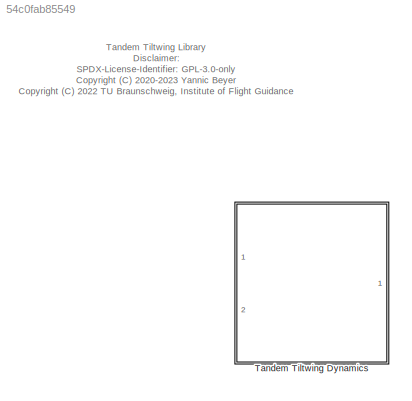
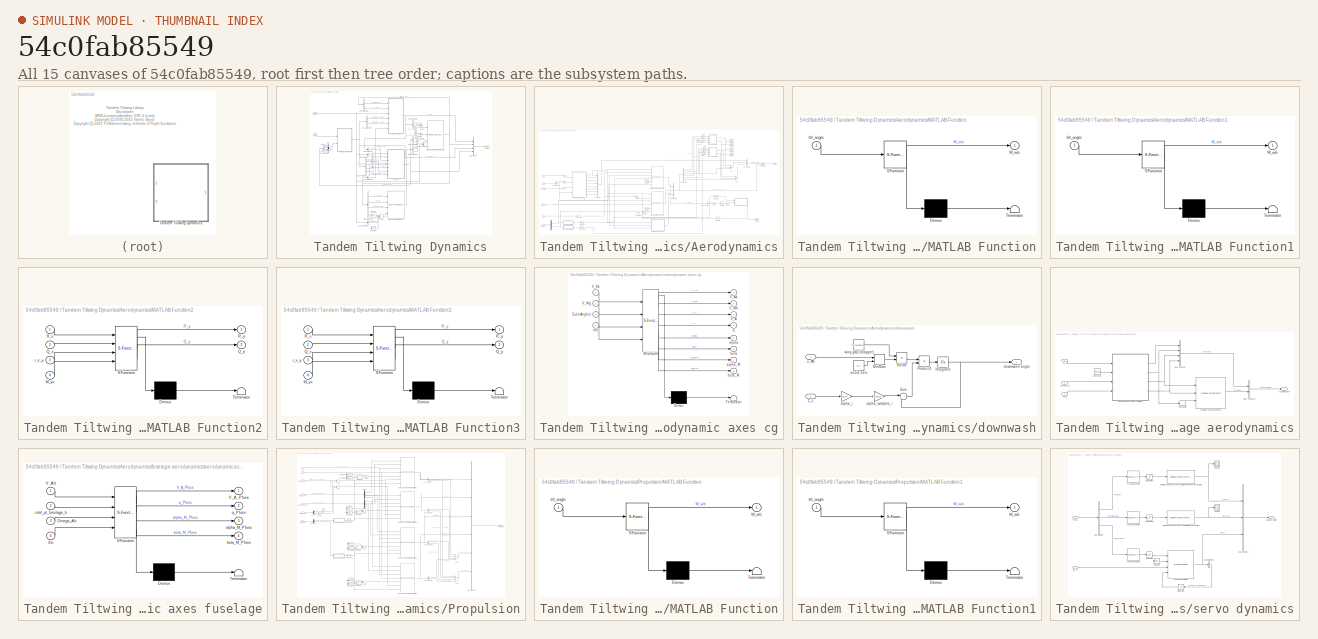
[diagram: thumbnail index - all 15 canvases of the model, root first then tree order]
MODEL slx_54c0fab85549
KIND library
CONFIG AbsTol = auto
CONFIG EnableMultiTasking = off
CONFIG FixedStep = auto
CONFIG MaxStep = auto
CONFIG MinStep = auto
CONFIG RelTol = 1e-3
CONFIG SampleTimeConstraint = Unconstrained
CONFIG Solver = VariableStepAuto
CONFIG SolverName = VariableStepAuto
CONFIG StartTime = 0.0
CONFIG StopTime = 10.0
BLOCK [SubSystem] Tandem Tiltwing Dynamics
  Ports = [2, 1]
  RequestExecContextInheritance = off
BLOCK [Sum] Tandem Tiltwing Dynamics/Add1
  InputSameDT = off
  Inputs = 3
  OutDataTypeStr = Inherit: Inherit via internal rule
  Ports = [3, 1]
  SaturateOnIntegerOverflow = off
BLOCK [Sum] Tandem Tiltwing Dynamics/Add2
  InputSameDT = off
  Inputs = 3
  OutDataTypeStr = Inherit: Inherit via internal rule
  Ports = [3, 1]
  SaturateOnIntegerOverflow = off
BLOCK [Sum] Tandem Tiltwing Dynamics/Add3
  InputSameDT = off
  Inputs = --+
  OutDataTypeStr = Inherit: Inherit via internal rule
  Ports = [3, 1]
  SaturateOnIntegerOverflow = off
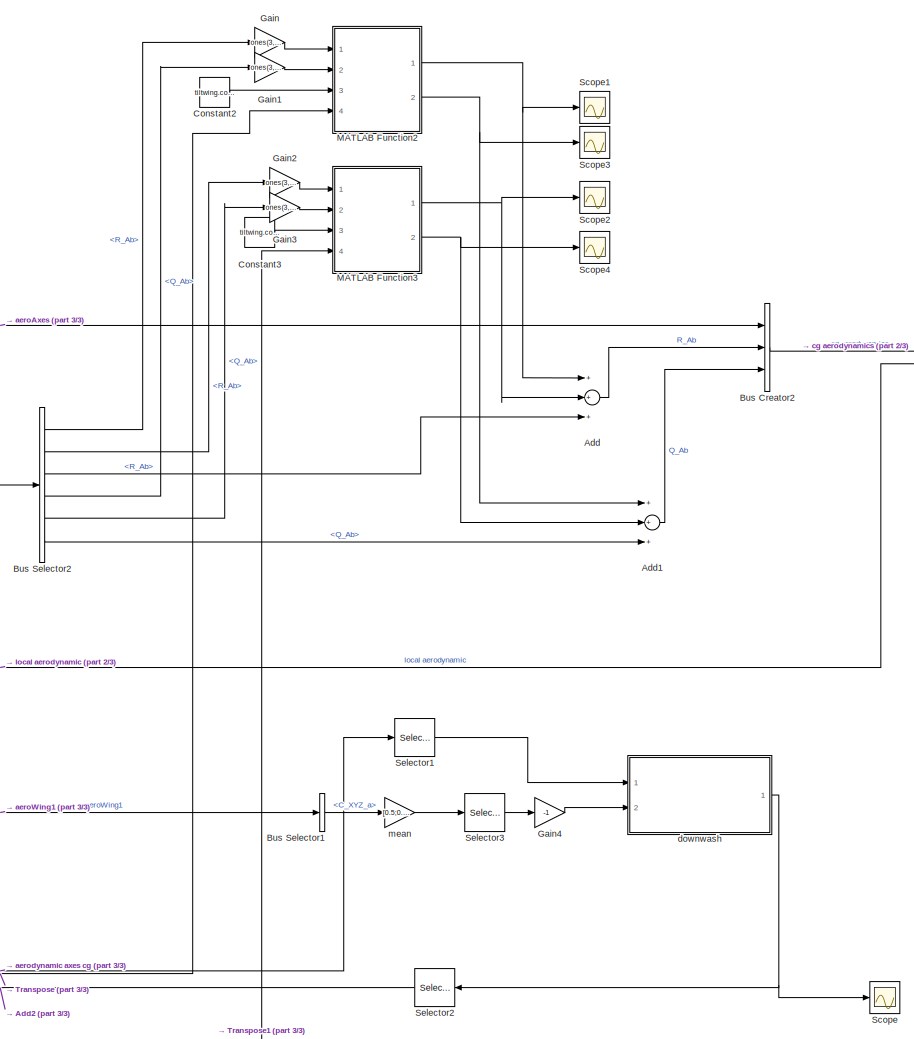
[diagram: Tandem Tiltwing Dynamics/Aerodynamics - part 1/3, right side, full height]
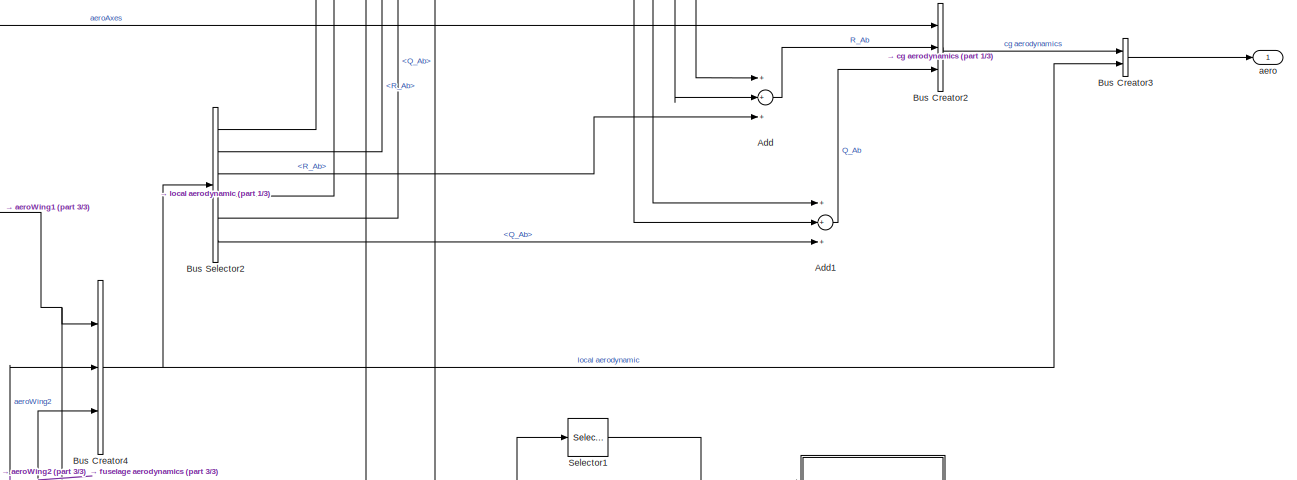
[diagram: Tandem Tiltwing Dynamics/Aerodynamics - part 2/3, middle right region]
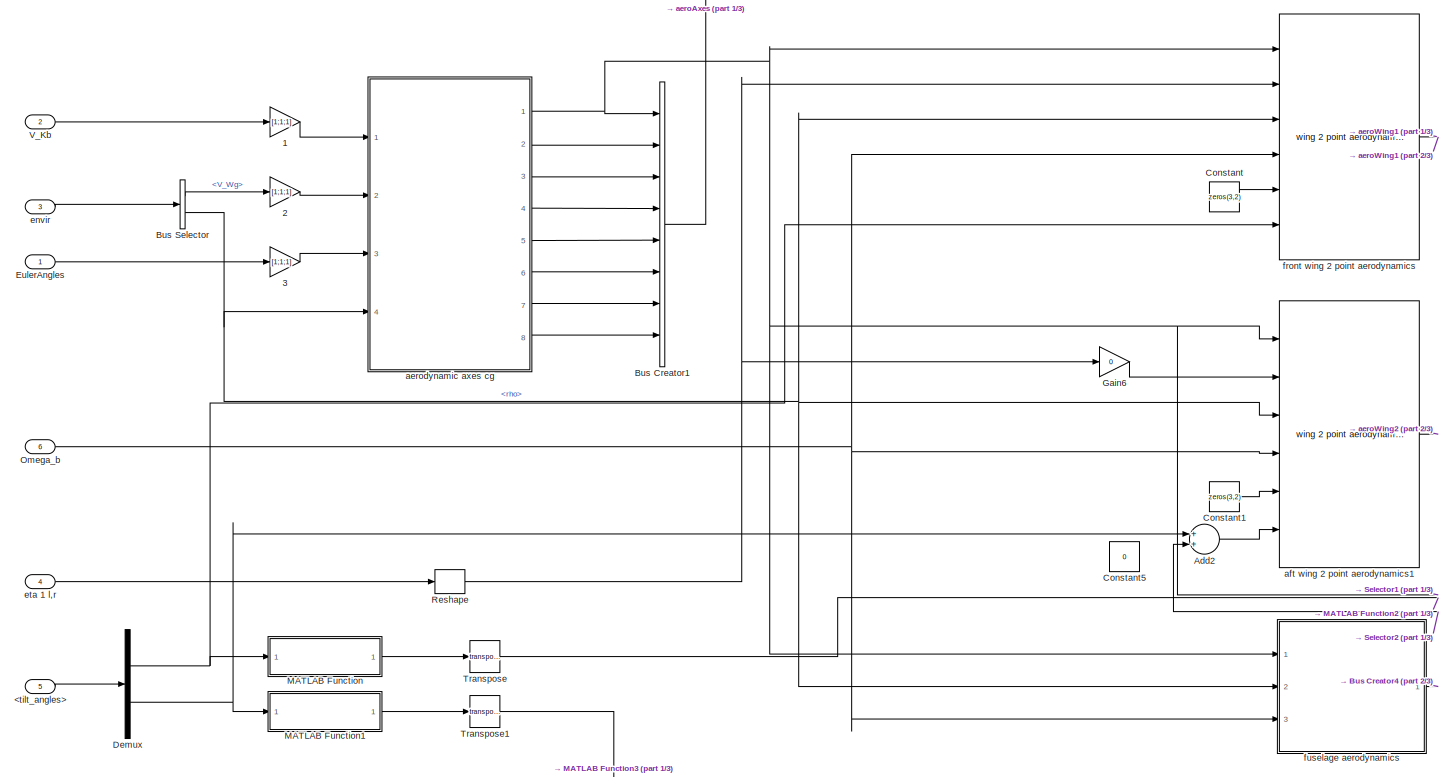
[diagram: Tandem Tiltwing Dynamics/Aerodynamics - part 3/3, middle left region]
BLOCK [SubSystem] Tandem Tiltwing Dynamics/Aerodynamics
  Ports = [6, 1]
  RequestExecContextInheritance = off
BLOCK [Gain] Tandem Tiltwing Dynamics/Aerodynamics/1
  Gain = [1;1;1]
  OutDataTypeStr = Inherit: Inherit via internal rule
  ParamDataTypeStr = Inherit: Inherit via internal rule
  SaturateOnIntegerOverflow = off
BLOCK [Gain] Tandem Tiltwing Dynamics/Aerodynamics/2
  Gain = [1;1;1]
  OutDataTypeStr = double
  ParamDataTypeStr = Inherit: Inherit via internal rule
  SaturateOnIntegerOverflow = off
BLOCK [Gain] Tandem Tiltwing Dynamics/Aerodynamics/3
  Gain = [1;1;1]
  OutDataTypeStr = Inherit: Inherit via internal rule
  ParamDataTypeStr = Inherit: Inherit via internal rule
  SaturateOnIntegerOverflow = off
BLOCK [Inport] Tandem Tiltwing Dynamics/Aerodynamics/<tilt_angles>
  IconDisplay = Port number
  Port = 5
BLOCK [Sum] Tandem Tiltwing Dynamics/Aerodynamics/Add
  InputSameDT = off
  Inputs = +++
  OutDataTypeStr = Inherit: Inherit via internal rule
  Ports = [3, 1]
  SaturateOnIntegerOverflow = off
BLOCK [Sum] Tandem Tiltwing Dynamics/Aerodynamics/Add1
  InputSameDT = off
  Inputs = +++
  OutDataTypeStr = Inherit: Inherit via internal rule
  Ports = [3, 1]
  SaturateOnIntegerOverflow = off
BLOCK [Sum] Tandem Tiltwing Dynamics/Aerodynamics/Add2
  InputSameDT = off
  OutDataTypeStr = Inherit: Inherit via internal rule
  Ports = [2, 1]
  SaturateOnIntegerOverflow = off
BLOCK [BusCreator] Tandem Tiltwing Dynamics/Aerodynamics/Bus Creator1
  DisplayOption = bar
  InheritFromInputs = on
  Inputs = 8
  Ports = [8, 1]
BLOCK [BusCreator] Tandem Tiltwing Dynamics/Aerodynamics/Bus Creator2
  DisplayOption = bar
  InheritFromInputs = on
  Inputs = 3
  Ports = [3, 1]
BLOCK [BusCreator] Tandem Tiltwing Dynamics/Aerodynamics/Bus Creator3
  DisplayOption = bar
  InheritFromInputs = on
  Inputs = 2
  Ports = [2, 1]
BLOCK [BusCreator] Tandem Tiltwing Dynamics/Aerodynamics/Bus Creator4
  DisplayOption = bar
  InheritFromInputs = on
  Inputs = 3
  Ports = [3, 1]
BLOCK [BusSelector] Tandem Tiltwing Dynamics/Aerodynamics/Bus Selector
  OutputAsBus = off
  OutputSignals = windBus.V_Wg,atmosphereBus.rho
  Ports = [1, 2]
BLOCK [BusSelector] Tandem Tiltwing Dynamics/Aerodynamics/Bus Selector1
  OutputAsBus = off
  OutputSignals = dynamics.C_XYZ_a
  Ports = [1, 1]
BLOCK [BusSelector] Tandem Tiltwing Dynamics/Aerodynamics/Bus Selector2
  OutputAsBus = off
  OutputSignals = aeroWing1.dynamics.R_Ab,aeroWing2.dynamics.R_Ab,aeroFuselage.dynamics.R_Ab,aeroWing1.dynamics.Q_Ab,aeroWing2.dynamics.Q_Ab,aeroFuselage.dynamics.Q_Ab
  Ports = [1, 6]
BLOCK [Constant] Tandem Tiltwing Dynamics/Aerodynamics/Constant
  Value = zeros(3,2)
BLOCK [Constant] Tandem Tiltwing Dynamics/Aerodynamics/Constant1
  Value = zeros(3,2)
BLOCK [Constant] Tandem Tiltwing Dynamics/Aerodynamics/Constant2
  Value = tiltwing.config.xyz_c_tp1-tiltwing.config.xyz_c_cg
BLOCK [Constant] Tandem Tiltwing Dynamics/Aerodynamics/Constant3
  Value = tiltwing.config.xyz_c_tp2-tiltwing.config.xyz_c_cg
BLOCK [Constant] Tandem Tiltwing Dynamics/Aerodynamics/Constant5
  Value = 0
BLOCK [Demux] Tandem Tiltwing Dynamics/Aerodynamics/Demux
  DisplayOption = bar
  Outputs = 2
  Ports = [1, 2]
BLOCK [Inport] Tandem Tiltwing Dynamics/Aerodynamics/EulerAngles 
  IconDisplay = Port number
BLOCK [Gain] Tandem Tiltwing Dynamics/Aerodynamics/Gain
  Gain = ones(3,1)
  OutDataTypeStr = Inherit: Inherit via internal rule
  ParamDataTypeStr = Inherit: Inherit via internal rule
  SaturateOnIntegerOverflow = off
BLOCK [Gain] Tandem Tiltwing Dynamics/Aerodynamics/Gain1
  Gain = ones(3,1)
  OutDataTypeStr = Inherit: Inherit via internal rule
  ParamDataTypeStr = Inherit: Inherit via internal rule
  SaturateOnIntegerOverflow = off
BLOCK [Gain] Tandem Tiltwing Dynamics/Aerodynamics/Gain2
  Gain = ones(3,1)
  OutDataTypeStr = Inherit: Inherit via internal rule
  ParamDataTypeStr = Inherit: Inherit via internal rule
  SaturateOnIntegerOverflow = off
BLOCK [Gain] Tandem Tiltwing Dynamics/Aerodynamics/Gain3
  Gain = ones(3,1)
  OutDataTypeStr = Inherit: Inherit via internal rule
  ParamDataTypeStr = Inherit: Inherit via internal rule
  SaturateOnIntegerOverflow = off
BLOCK [Gain] Tandem Tiltwing Dynamics/Aerodynamics/Gain4
  Gain = -1
  OutDataTypeStr = Inherit: Inherit via internal rule
  ParamDataTypeStr = Inherit: Inherit via internal rule
  SaturateOnIntegerOverflow = off
BLOCK [Gain] Tandem Tiltwing Dynamics/Aerodynamics/Gain6
  Gain = 0
  OutDataTypeStr = Inherit: Inherit via internal rule
  ParamDataTypeStr = Inherit: Inherit via internal rule
  SaturateOnIntegerOverflow = off
BLOCK [SubSystem] Tandem Tiltwing Dynamics/Aerodynamics/MATLAB Function
  ErrorFcn = Stateflow.Translate.translate
  PermitHierarchicalResolution = ExplicitOnly
  Ports = [1, 1]
  RequestExecContextInheritance = off
  SFBlockType = MATLAB Function
  TreatAsAtomicUnit = on
BLOCK [Demux] Tandem Tiltwing Dynamics/Aerodynamics/MATLAB Function/ Demux 
  Outputs = 1
  Ports = [1, 1]
BLOCK [S-Function] Tandem Tiltwing Dynamics/Aerodynamics/MATLAB Function/ SFunction 
  EnableBusSupport = off
  FunctionName = sf_sfun
  PortCounts = [1 2]
  Ports = [1, 2]
  SFcnIsStateOwnerBlock = off
  SFunctionDeploymentMode = off
  Tag = Stateflow S-Function tandem_tiltwing_lib 1
BLOCK [Terminator] Tandem Tiltwing Dynamics/Aerodynamics/MATLAB Function/ Terminator 
BLOCK [Outport] Tandem Tiltwing Dynamics/Aerodynamics/MATLAB Function/M_wb
  IconDisplay = Port number
BLOCK [Inport] Tandem Tiltwing Dynamics/Aerodynamics/MATLAB Function/tilt_angle
  IconDisplay = Port number
BLOCK [SubSystem] Tandem Tiltwing Dynamics/Aerodynamics/MATLAB Function1
  ErrorFcn = Stateflow.Translate.translate
  PermitHierarchicalResolution = ExplicitOnly
  Ports = [1, 1]
  RequestExecContextInheritance = off
  SFBlockType = MATLAB Function
  TreatAsAtomicUnit = on
BLOCK [Demux] Tandem Tiltwing Dynamics/Aerodynamics/MATLAB Function1/ Demux 
  Outputs = 1
  Ports = [1, 1]
BLOCK [S-Function] Tandem Tiltwing Dynamics/Aerodynamics/MATLAB Function1/ SFunction 
  EnableBusSupport = off
  FunctionName = sf_sfun
  PortCounts = [1 2]
  Ports = [1, 2]
  SFcnIsStateOwnerBlock = off
  SFunctionDeploymentMode = off
  Tag = Stateflow S-Function tandem_tiltwing_lib 11
BLOCK [Terminator] Tandem Tiltwing Dynamics/Aerodynamics/MATLAB Function1/ Terminator 
BLOCK [Outport] Tandem Tiltwing Dynamics/Aerodynamics/MATLAB Function1/M_wb
  IconDisplay = Port number
BLOCK [Inport] Tandem Tiltwing Dynamics/Aerodynamics/MATLAB Function1/tilt_angle
  IconDisplay = Port number
BLOCK [SubSystem] Tandem Tiltwing Dynamics/Aerodynamics/MATLAB Function2
  ErrorFcn = Stateflow.Translate.translate
  PermitHierarchicalResolution = ExplicitOnly
  Ports = [4, 2]
  RequestExecContextInheritance = off
  SFBlockType = MATLAB Function
  TreatAsAtomicUnit = on
BLOCK [Demux] Tandem Tiltwing Dynamics/Aerodynamics/MATLAB Function2/ Demux 
  Outputs = 1
  Ports = [1, 1]
BLOCK [S-Function] Tandem Tiltwing Dynamics/Aerodynamics/MATLAB Function2/ SFunction 
  EnableBusSupport = off
  FunctionName = sf_sfun
  PortCounts = [4 3]
  Ports = [4, 3]
  SFcnIsStateOwnerBlock = off
  SFunctionDeploymentMode = off
  Tag = Stateflow S-Function tandem_tiltwing_lib 18
BLOCK [Terminator] Tandem Tiltwing Dynamics/Aerodynamics/MATLAB Function2/ Terminator 
BLOCK [Inport] Tandem Tiltwing Dynamics/Aerodynamics/MATLAB Function2/M_yx
  IconDisplay = Port number
  Port = 4
BLOCK [Inport] Tandem Tiltwing Dynamics/Aerodynamics/MATLAB Function2/Q_x
  IconDisplay = Port number
  Port = 2
BLOCK [Outport] Tandem Tiltwing Dynamics/Aerodynamics/MATLAB Function2/Q_y
  IconDisplay = Port number
  Port = 2
BLOCK [Inport] Tandem Tiltwing Dynamics/Aerodynamics/MATLAB Function2/R_x
  IconDisplay = Port number
BLOCK [Outport] Tandem Tiltwing Dynamics/Aerodynamics/MATLAB Function2/R_y
  IconDisplay = Port number
BLOCK [Inport] Tandem Tiltwing Dynamics/Aerodynamics/MATLAB Function2/r_x_y
  IconDisplay = Port number
  Port = 3
BLOCK [SubSystem] Tandem Tiltwing Dynamics/Aerodynamics/MATLAB Function3
  ErrorFcn = Stateflow.Translate.translate
  PermitHierarchicalResolution = ExplicitOnly
  Ports = [4, 2]
  RequestExecContextInheritance = off
  SFBlockType = MATLAB Function
  TreatAsAtomicUnit = on
BLOCK [Demux] Tandem Tiltwing Dynamics/Aerodynamics/MATLAB Function3/ Demux 
  Outputs = 1
  Ports = [1, 1]
BLOCK [S-Function] Tandem Tiltwing Dynamics/Aerodynamics/MATLAB Function3/ SFunction 
  EnableBusSupport = off
  FunctionName = sf_sfun
  PortCounts = [4 3]
  Ports = [4, 3]
  SFcnIsStateOwnerBlock = off
  SFunctionDeploymentMode = off
  Tag = Stateflow S-Function tandem_tiltwing_lib 19
BLOCK [Terminator] Tandem Tiltwing Dynamics/Aerodynamics/MATLAB Function3/ Terminator 
BLOCK [Inport] Tandem Tiltwing Dynamics/Aerodynamics/MATLAB Function3/M_yx
  IconDisplay = Port number
  Port = 4
BLOCK [Inport] Tandem Tiltwing Dynamics/Aerodynamics/MATLAB Function3/Q_x
  IconDisplay = Port number
  Port = 2
BLOCK [Outport] Tandem Tiltwing Dynamics/Aerodynamics/MATLAB Function3/Q_y
  IconDisplay = Port number
  Port = 2
BLOCK [Inport] Tandem Tiltwing Dynamics/Aerodynamics/MATLAB Function3/R_x
  IconDisplay = Port number
BLOCK [Outport] Tandem Tiltwing Dynamics/Aerodynamics/MATLAB Function3/R_y
  IconDisplay = Port number
BLOCK [Inport] Tandem Tiltwing Dynamics/Aerodynamics/MATLAB Function3/r_x_y
  IconDisplay = Port number
  Port = 3
BLOCK [Inport] Tandem Tiltwing Dynamics/Aerodynamics/Omega_b
  IconDisplay = Port number
  Port = 6
BLOCK [Reshape] Tandem Tiltwing Dynamics/Aerodynamics/Reshape
  OutputDimensionality = Row vector (2-D)
  Ports = [1, 1]
BLOCK [Scope] Tandem Tiltwing Dynamics/Aerodynamics/Scope
  Floating = off
  NumInputPorts = 1
  Ports = [1]
  ScopeSpecificationString = Simulink.scopes.TimeScopeBlockCfg('CurrentConfiguration', extmgr.ConfigurationSet(extmgr.Configuration('Core','General UI',true),extmgr.Configuration('Core','Source UI',true),extmgr.Configuration('Sources','WiredSimulink',true,'DataLoggingVariableName','ScopeData1'),extmgr.Configuration('Visuals','Time Domain',true,'SerializedDisplays',{struct('MinYLimReal','-0.01862','MaxYLimReal','0.00207','YLab...<+1392ch>
BLOCK [Scope] Tandem Tiltwing Dynamics/Aerodynamics/Scope1
  Floating = off
  NumInputPorts = 1
  Ports = [1]
  ScopeSpecificationString = Simulink.scopes.TimeScopeBlockCfg('CurrentConfiguration', extmgr.ConfigurationSet(extmgr.Configuration('Core','General UI',true),extmgr.Configuration('Core','Source UI',true),extmgr.Configuration('Sources','WiredSimulink',true,'DataLoggingVariableName','ScopeData2'),extmgr.Configuration('Visuals','Time Domain',true,'SerializedDisplays',{struct('MinYLimReal','-67.22209','MaxYLimReal','8.64038','YLa...<+1508ch>
BLOCK [Scope] Tandem Tiltwing Dynamics/Aerodynamics/Scope2
  Floating = off
  NumInputPorts = 1
  Ports = [1]
  ScopeSpecificationString = Simulink.scopes.TimeScopeBlockCfg('CurrentConfiguration', extmgr.ConfigurationSet(extmgr.Configuration('Core','General UI',true),extmgr.Configuration('Core','Source UI',true),extmgr.Configuration('Sources','WiredSimulink',true,'DataLoggingVariableName','ScopeData3'),extmgr.Configuration('Visuals','Time Domain',true,'SerializedDisplays',{struct('MinYLimReal','-2.87055','MaxYLimReal','6.26596','YLab...<+1486ch>
BLOCK [Scope] Tandem Tiltwing Dynamics/Aerodynamics/Scope3
  Floating = off
  NumInputPorts = 1
  Ports = [1]
  ScopeSpecificationString = Simulink.scopes.TimeScopeBlockCfg('CurrentConfiguration', extmgr.ConfigurationSet(extmgr.Configuration('Core','General UI',true),extmgr.Configuration('Core','Source UI',true),extmgr.Configuration('Sources','WiredSimulink',true,'DataLoggingVariableName','ScopeData4'),extmgr.Configuration('Visuals','Time Domain',true,'SerializedDisplays',{struct('MinYLimReal','-1.71461','MaxYLimReal','1.05234','YLab...<+1485ch>
BLOCK [Scope] Tandem Tiltwing Dynamics/Aerodynamics/Scope4
  Floating = off
  NumInputPorts = 1
  Ports = [1]
  ScopeSpecificationString = Simulink.scopes.TimeScopeBlockCfg('CurrentConfiguration', extmgr.ConfigurationSet(extmgr.Configuration('Core','General UI',true),extmgr.Configuration('Core','Source UI',true),extmgr.Configuration('Sources','WiredSimulink',true,'DataLoggingVariableName','ScopeData5'),extmgr.Configuration('Visuals','Time Domain',true,'SerializedDisplays',{struct('MinYLimReal','-1.30361','MaxYLimReal','1.8937','YLabe...<+1482ch>
BLOCK [Selector] Tandem Tiltwing Dynamics/Aerodynamics/Selector1
  IndexOptions = Index vector (dialog)
  Indices = 1
  InputPortWidth = 3
  OutputSizes = 1
  Ports = [1, 1]
BLOCK [Selector] Tandem Tiltwing Dynamics/Aerodynamics/Selector2
  IndexOptions = Index vector (dialog)
  Indices = 1
  InputPortWidth = 1
  OutputSizes = 1
  Ports = [1, 1]
BLOCK [Selector] Tandem Tiltwing Dynamics/Aerodynamics/Selector3
  IndexOptions = Index vector (dialog)
  Indices = 3
  InputPortWidth = 3
  OutputSizes = 1
  Ports = [1, 1]
BLOCK [Math] Tandem Tiltwing Dynamics/Aerodynamics/Transpose
  Operator = transpose
  Ports = [1, 1]
BLOCK [Math] Tandem Tiltwing Dynamics/Aerodynamics/Transpose1
  Operator = transpose
  Ports = [1, 1]
BLOCK [Inport] Tandem Tiltwing Dynamics/Aerodynamics/V_Kb
  IconDisplay = Port number
  Port = 2
BLOCK [Outport] Tandem Tiltwing Dynamics/Aerodynamics/aero
  IconDisplay = Port number
BLOCK [SubSystem] Tandem Tiltwing Dynamics/Aerodynamics/aerodynamic axes cg
  ErrorFcn = Stateflow.Translate.translate
  PermitHierarchicalResolution = ExplicitOnly
  Ports = [4, 8]
  RequestExecContextInheritance = off
  SFBlockType = MATLAB Function
  TreatAsAtomicUnit = on
BLOCK [Demux] Tandem Tiltwing Dynamics/Aerodynamics/aerodynamic axes cg/ Demux 
  Outputs = 1
  Ports = [1, 1]
BLOCK [S-Function] Tandem Tiltwing Dynamics/Aerodynamics/aerodynamic axes cg/ SFunction 
  EnableBusSupport = off
  FunctionName = sf_sfun
  PortCounts = [4 9]
  Ports = [4, 9]
  SFcnIsStateOwnerBlock = off
  SFunctionDeploymentMode = off
  Tag = Stateflow S-Function tandem_tiltwing_lib 3
BLOCK [Terminator] Tandem Tiltwing Dynamics/Aerodynamics/aerodynamic axes cg/ Terminator 
BLOCK [Inport] Tandem Tiltwing Dynamics/Aerodynamics/aerodynamic axes cg/EulerAngles
  IconDisplay = Port number
  Port = 3
BLOCK [Outport] Tandem Tiltwing Dynamics/Aerodynamics/aerodynamic axes cg/V_A
  IconDisplay = Port number
  Port = 3
BLOCK [Outport] Tandem Tiltwing Dynamics/Aerodynamics/aerodynamic axes cg/V_Ab
  IconDisplay = Port number
BLOCK [Inport] Tandem Tiltwing Dynamics/Aerodynamics/aerodynamic axes cg/V_Kb
  IconDisplay = Port number
BLOCK [Outport] Tandem Tiltwing Dynamics/Aerodynamics/aerodynamic axes cg/V_Wb
  IconDisplay = Port number
  Port = 2
BLOCK [Inport] Tandem Tiltwing Dynamics/Aerodynamics/aerodynamic axes cg/V_Wg
  IconDisplay = Port number
  Port = 2
BLOCK [Outport] Tandem Tiltwing Dynamics/Aerodynamics/aerodynamic axes cg/alpha
  IconDisplay = Port number
  Port = 5
BLOCK [Outport] Tandem Tiltwing Dynamics/Aerodynamics/aerodynamic axes cg/alpha_M
  IconDisplay = Port number
  Port = 7
BLOCK [Outport] Tandem Tiltwing Dynamics/Aerodynamics/aerodynamic axes cg/beta
  IconDisplay = Port number
  Port = 6
BLOCK [Outport] Tandem Tiltwing Dynamics/Aerodynamics/aerodynamic axes cg/beta_M
  IconDisplay = Port number
  Port = 8
BLOCK [Outport] Tandem Tiltwing Dynamics/Aerodynamics/aerodynamic axes cg/q
  IconDisplay = Port number
  Port = 4
BLOCK [Inport] Tandem Tiltwing Dynamics/Aerodynamics/aerodynamic axes cg/rho
  IconDisplay = Port number
  Port = 4
BLOCK [Reference] Tandem Tiltwing Dynamics/Aerodynamics/aft wing 2 point aerodynamics1  REF=simple_wing_lib/wing 2 point aerodynamics  (lib defined in slx_d7e68b13d310)
  Ports = [6, 1]
  SourceBlock = simple_wing_lib/wing 2 point aerodynamics
  SourceProductName = LADAC
BLOCK [SubSystem] Tandem Tiltwing Dynamics/Aerodynamics/downwash
  Ports = [2, 1]
  RequestExecContextInheritance = off
BLOCK [Inport] Tandem Tiltwing Dynamics/Aerodynamics/downwash/C_L
  IconDisplay = Port number
  Port = 2
BLOCK [Product] Tandem Tiltwing Dynamics/Aerodynamics/downwash/Divide
  InputSameDT = off
  Inputs = */
  OutDataTypeStr = Inherit: Inherit via internal rule
  Ports = [2, 1]
  RndMeth = Floor
  SaturateOnIntegerOverflow = off
BLOCK [Integrator] Tandem Tiltwing Dynamics/Aerodynamics/downwash/Integrator
  ContinuousStateAttributes = 'downwash'
  Ports = [1, 1]
BLOCK [MinMax] Tandem Tiltwing Dynamics/Aerodynamics/downwash/MinMax
  Function = max
  InputSameDT = off
  Inputs = 2
  Ports = [2, 1]
  SaturateOnIntegerOverflow = off
BLOCK [Product] Tandem Tiltwing Dynamics/Aerodynamics/downwash/Product4
  InputSameDT = off
  OutDataTypeStr = Inherit: Inherit via internal rule
  Ports = [2, 1]
  RndMeth = Floor
  SaturateOnIntegerOverflow = off
BLOCK [Sum] Tandem Tiltwing Dynamics/Aerodynamics/downwash/Sum
  IconShape = round
  InputSameDT = off
  Inputs = |+-
  OutDataTypeStr = Inherit: Inherit via internal rule
  Ports = [2, 1]
  SaturateOnIntegerOverflow = off
BLOCK [Gain] Tandem Tiltwing Dynamics/Aerodynamics/downwash/alpha_i
  Gain = 1/pi/(tiltwing.aero.wing_1.geometry.b/tiltwing.aero.wing_1.geometry.c)
  OutDataTypeStr = Inherit: Inherit via internal rule
  ParamDataTypeStr = Inherit: Inherit via internal rule
  SaturateOnIntegerOverflow = off
BLOCK [Gain] Tandem Tiltwing Dynamics/Aerodynamics/downwash/alpha_w//alpha_i
  Gain = tiltwing.aero.alphaw_alphai
  OutDataTypeStr = Inherit: Inherit via internal rule
  ParamDataTypeStr = Inherit: Inherit via internal rule
  SaturateOnIntegerOverflow = off
BLOCK [Constant] Tandem Tiltwing Dynamics/Aerodynamics/downwash/avoid zero
  Value = 0.1
BLOCK [Outport] Tandem Tiltwing Dynamics/Aerodynamics/downwash/downwash angle
  IconDisplay = Port number
  PortDimensions = 1
BLOCK [Inport] Tandem Tiltwing Dynamics/Aerodynamics/downwash/u_Ab
  IconDisplay = Port number
BLOCK [Constant] Tandem Tiltwing Dynamics/Aerodynamics/downwash/wing gap (stagger)
  Value = tiltwing.config.xyz_c_tp1(1)-tiltwing.config.xyz_c_tp2(1)
BLOCK [Inport] Tandem Tiltwing Dynamics/Aerodynamics/envir
  IconDisplay = Port number
  Port = 3
BLOCK [Inport] Tandem Tiltwing Dynamics/Aerodynamics/eta 1 l,r
  IconDisplay = Port number
  Port = 4
BLOCK [Reference] Tandem Tiltwing Dynamics/Aerodynamics/front wing 2 point aerodynamics  REF=simple_wing_lib/wing 2 point aerodynamics  (lib defined in slx_d7e68b13d310)
  Ports = [6, 1]
  SourceBlock = simple_wing_lib/wing 2 point aerodynamics
  SourceProductName = LADAC
BLOCK [SubSystem] Tandem Tiltwing Dynamics/Aerodynamics/fuselage aerodynamics
  Ports = [3, 1]
  RequestExecContextInheritance = off
BLOCK [Inport] Tandem Tiltwing Dynamics/Aerodynamics/fuselage aerodynamics/<rho>
  IconDisplay = Port number
  Port = 2
BLOCK [BusCreator] Tandem Tiltwing Dynamics/Aerodynamics/fuselage aerodynamics/Bus Creator
  DisplayOption = bar
  InheritFromInputs = on
  Inputs = 4
  Ports = [4, 1]
BLOCK [BusCreator] Tandem Tiltwing Dynamics/Aerodynamics/fuselage aerodynamics/Bus Creator1
  DisplayOption = bar
  InheritFromInputs = on
  Inputs = 2
  Ports = [2, 1]
BLOCK [Constant] Tandem Tiltwing Dynamics/Aerodynamics/fuselage aerodynamics/Constant2
  Value = zeros(3,1)
BLOCK [Inport] Tandem Tiltwing Dynamics/Aerodynamics/fuselage aerodynamics/Omega_Ab
  IconDisplay = Port number
  Port = 3
BLOCK [Reshape] Tandem Tiltwing Dynamics/Aerodynamics/fuselage aerodynamics/Reshape2
  OutputDimensionality = Row vector (2-D)
  Ports = [1, 1]
BLOCK [Inport] Tandem Tiltwing Dynamics/Aerodynamics/fuselage aerodynamics/V_Ab
  IconDisplay = Port number
BLOCK [SubSystem] Tandem Tiltwing Dynamics/Aerodynamics/fuselage aerodynamics/aerodynamic axes fuselage
  ErrorFcn = Stateflow.Translate.translate
  PermitHierarchicalResolution = ExplicitOnly
  Ports = [4, 4]
  RequestExecContextInheritance = off
  SFBlockType = MATLAB Function
  TreatAsAtomicUnit = on
BLOCK [Demux] Tandem Tiltwing Dynamics/Aerodynamics/fuselage aerodynamics/aerodynamic axes fuselage/ Demux 
  Outputs = 1
  Ports = [1, 1]
BLOCK [S-Function] Tandem Tiltwing Dynamics/Aerodynamics/fuselage aerodynamics/aerodynamic axes fuselage/ SFunction 
  EnableBusSupport = off
  FunctionName = sf_sfun
  PortCounts = [4 5]
  Ports = [4, 5]
  SFcnIsStateOwnerBlock = off
  SFunctionDeploymentMode = off
  Tag = Stateflow S-Function tandem_tiltwing_lib 10
BLOCK [Terminator] Tandem Tiltwing Dynamics/Aerodynamics/fuselage aerodynamics/aerodynamic axes fuselage/ Terminator 
BLOCK [Inport] Tandem Tiltwing Dynamics/Aerodynamics/fuselage aerodynamics/aerodynamic axes fuselage/Omega_Ab
  IconDisplay = Port number
  Port = 3
BLOCK [Outport] Tandem Tiltwing Dynamics/Aerodynamics/fuselage aerodynamics/aerodynamic axes fuselage/V_A_Pfuse
  IconDisplay = Port number
BLOCK [Inport] Tandem Tiltwing Dynamics/Aerodynamics/fuselage aerodynamics/aerodynamic axes fuselage/V_Ab
  IconDisplay = Port number
BLOCK [Outport] Tandem Tiltwing Dynamics/Aerodynamics/fuselage aerodynamics/aerodynamic axes fuselage/alpha_M_Pfuse
  IconDisplay = Port number
  Port = 3
BLOCK [Outport] Tandem Tiltwing Dynamics/Aerodynamics/fuselage aerodynamics/aerodynamic axes fuselage/beta_M_Pfuse
  IconDisplay = Port number
  Port = 4
BLOCK [Inport] Tandem Tiltwing Dynamics/Aerodynamics/fuselage aerodynamics/aerodynamic axes fuselage/cntrl_pt_fuselage_b
  IconDisplay = Port number
  Port = 2
BLOCK [Outport] Tandem Tiltwing Dynamics/Aerodynamics/fuselage aerodynamics/aerodynamic axes fuselage/q_Pfuse
  IconDisplay = Port number
  Port = 2
BLOCK [Inport] Tandem Tiltwing Dynamics/Aerodynamics/fuselage aerodynamics/aerodynamic axes fuselage/rho
  IconDisplay = Port number
  Port = 4
BLOCK [Reference] Tandem Tiltwing Dynamics/Aerodynamics/fuselage aerodynamics/fuselage aerodynamics1  REF=simpleFuselage_lib/fuselage aerodynamics
  Ports = [3, 1]
  SourceBlock = simpleFuselage_lib/fuselage aerodynamics
  SourceProductName = LADAC
BLOCK [Outport] Tandem Tiltwing Dynamics/Aerodynamics/fuselage aerodynamics/fuselageAero
  IconDisplay = Port number
BLOCK [Gain] Tandem Tiltwing Dynamics/Aerodynamics/mean
  Gain = [0.5;0.5]
  Multiplication = Matrix(u*K)
  OutDataTypeStr = Inherit: Inherit via internal rule
  ParamDataTypeStr = Inherit: Inherit via internal rule
  SaturateOnIntegerOverflow = off
BLOCK [BusCreator] Tandem Tiltwing Dynamics/Bus Creator
  DisplayOption = bar
  InheritFromInputs = on
  Inputs = 4
  Ports = [4, 1]
BLOCK [BusSelector] Tandem Tiltwing Dynamics/Bus Selector
  OutputAsBus = off
  OutputSignals = atmosphereBus.rho
  Ports = [1, 1]
BLOCK [BusSelector] Tandem Tiltwing Dynamics/Bus Selector1
  OutputAsBus = off
  OutputSignals = tilt_servos.deflection_in_rad,elevons.deflection_rate_in_rad_per_s,motors.angular_velocity_in_rad_per_s,motors.angular_acceleration_in_rad_per_square_s
  Ports = [1, 4]
BLOCK [BusSelector] Tandem Tiltwing Dynamics/Bus Selector10
  OutputAsBus = off
  OutputSignals = forces_and_moments.R_Gb,forces_and_moments.Q_Gb
  Ports = [1, 2]
BLOCK [BusSelector] Tandem Tiltwing Dynamics/Bus Selector11
  OutputAsBus = off
  OutputSignals = alt_ground
  Ports = [1, 1]
BLOCK [BusSelector] Tandem Tiltwing Dynamics/Bus Selector12
  OutputAsBus = off
  OutputSignals = g
  Ports = [1, 1]
BLOCK [BusSelector] Tandem Tiltwing Dynamics/Bus Selector2
  OutputAsBus = off
  OutputSignals = elevons.deflection_in_rad,tilt_servos.deflection_in_rad
  Ports = [1, 2]
BLOCK [BusSelector] Tandem Tiltwing Dynamics/Bus Selector3
  OutputAsBus = off
  OutputSignals = EulerAngles,V_Kb
  Ports = [1, 2]
BLOCK [BusSelector] Tandem Tiltwing Dynamics/Bus Selector4
  OutputAsBus = off
  OutputSignals = omega_Kb
  Ports = [1, 1]
BLOCK [BusSelector] Tandem Tiltwing Dynamics/Bus Selector5
  OutputAsBus = off
  OutputSignals = cg aerodynamics.R_Ab,cg aerodynamics.Q_Ab
  Ports = [1, 2]
BLOCK [BusSelector] Tandem Tiltwing Dynamics/Bus Selector6
  OutputAsBus = off
  OutputSignals = R_Fb_in_N,Q_Fb_in_N
  Ports = [1, 2]
BLOCK [BusSelector] Tandem Tiltwing Dynamics/Bus Selector7
  OutputAsBus = off
  OutputSignals = cg aerodynamics.aeroAxes.V_Ab
  Ports = [1, 1]
BLOCK [BusSelector] Tandem Tiltwing Dynamics/Bus Selector8
  OutputAsBus = off
  OutputSignals = propeller_1.torque_in_N,propeller_2.torque_in_N,propeller_3.torque_in_N,propeller_4.torque_in_N
  Ports = [1, 4]
BLOCK [BusSelector] Tandem Tiltwing Dynamics/Bus Selector9
  OutputAsBus = off
  OutputSignals = V_Kg,M_bg,omega_Kb,s_g
  Ports = [1, 4]
BLOCK [Constant] Tandem Tiltwing Dynamics/Constant
  Value = tiltwing.pos_ref.alt
  VectorParams1D = off
BLOCK [Reference] Tandem Tiltwing Dynamics/Ground contact model  REF=ground_lib/Ground contact model  (lib defined in slx_83645a88b0f4)
  Ports = [4, 1]
  SourceBlock = ground_lib/Ground contact model
  SourceProductName = LADAC
BLOCK [Mux] Tandem Tiltwing Dynamics/Mux
  DisplayOption = bar
  Ports = [4, 1]
BLOCK [Inport] Tandem Tiltwing Dynamics/PWM
  IconDisplay = Port number
  Port = 2
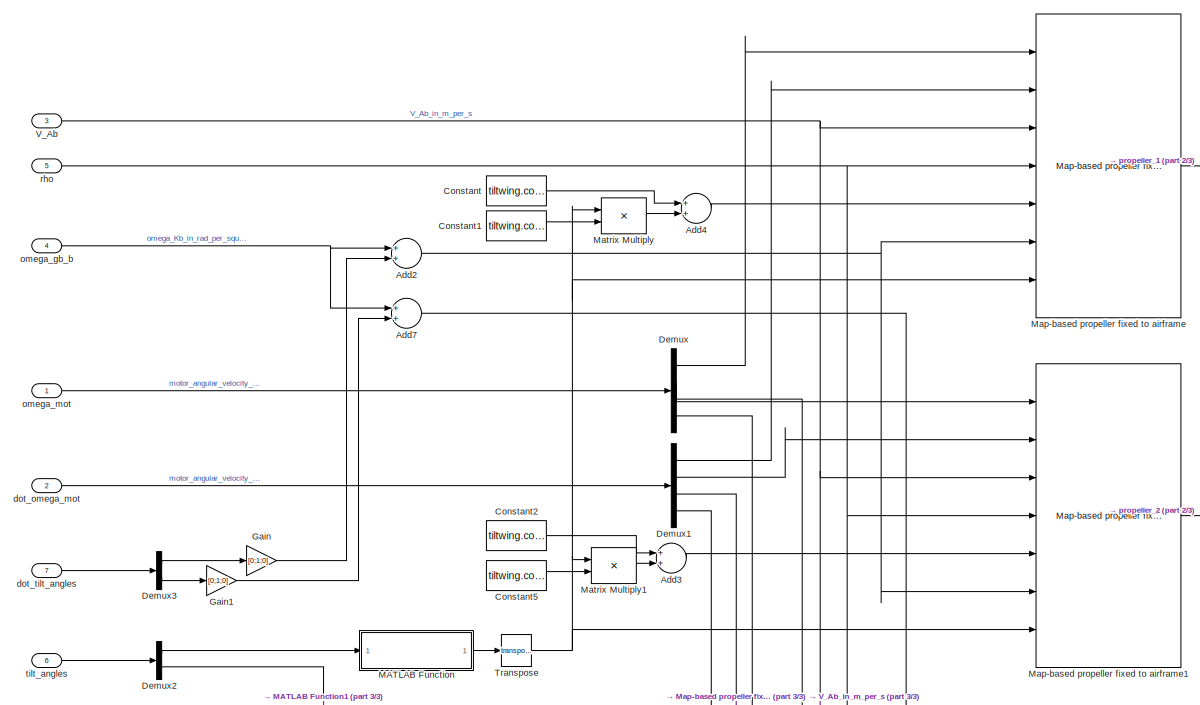
[diagram: Tandem Tiltwing Dynamics/Propulsion - part 1/3, top left region]
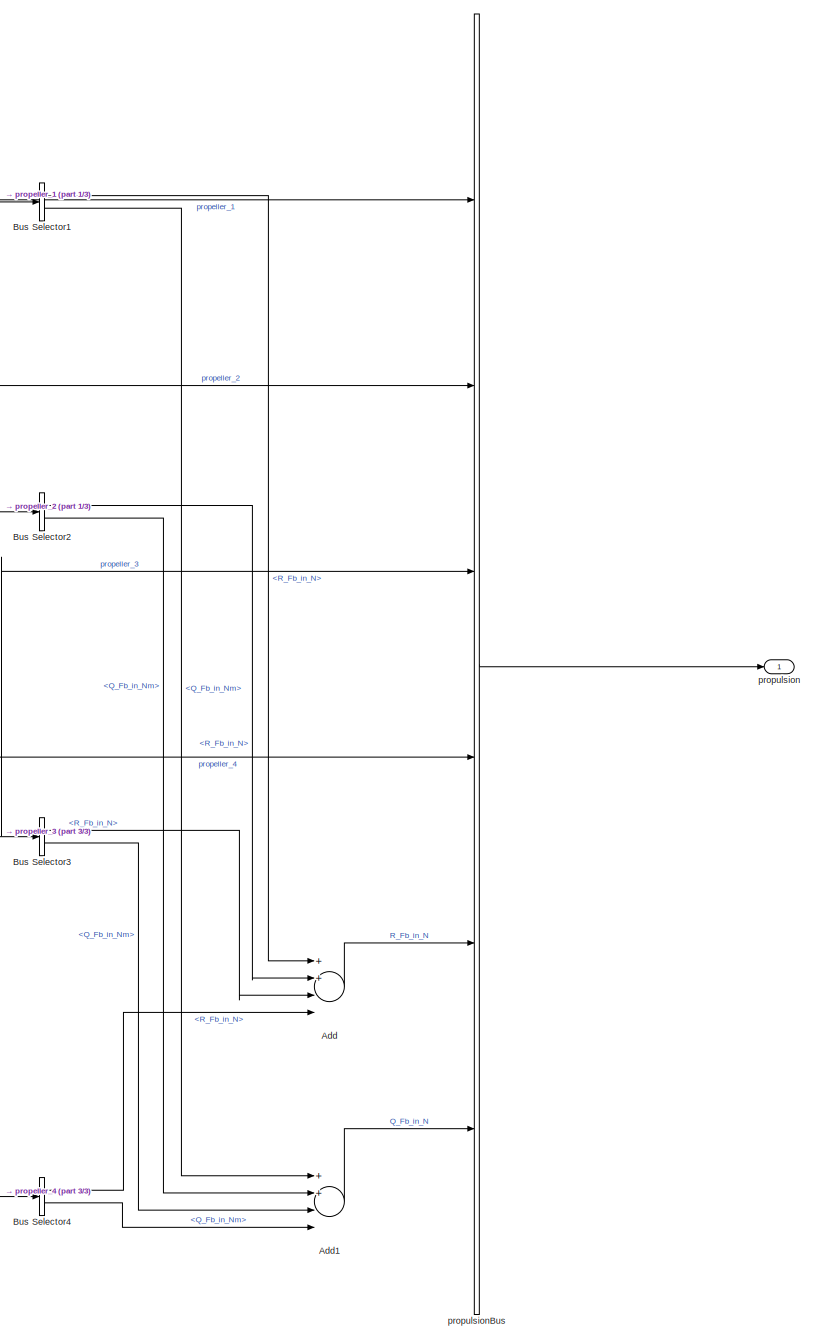
[diagram: Tandem Tiltwing Dynamics/Propulsion - part 2/3, right side, full height]
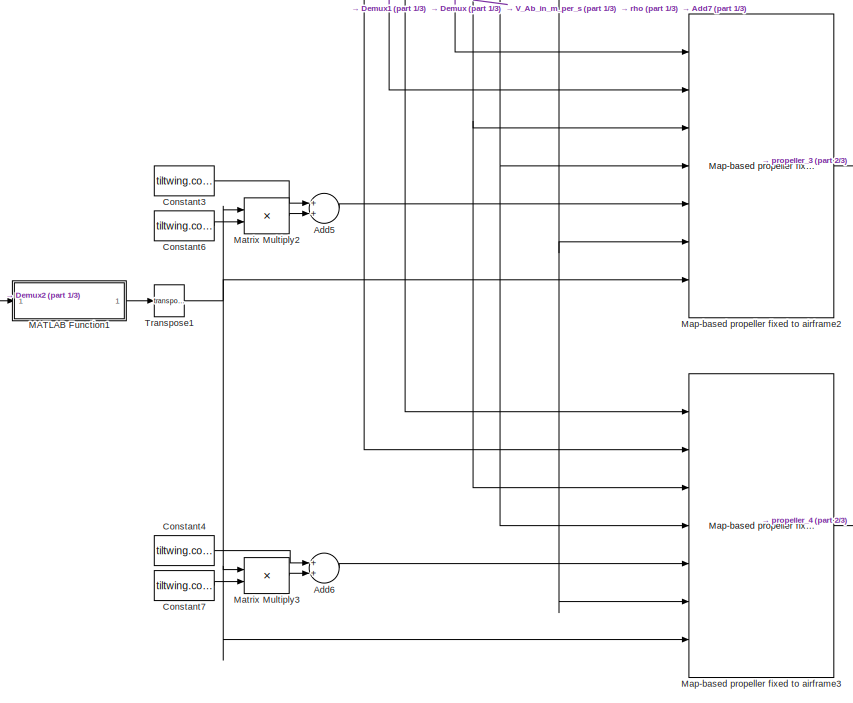
[diagram: Tandem Tiltwing Dynamics/Propulsion - part 3/3, bottom center region]
BLOCK [SubSystem] Tandem Tiltwing Dynamics/Propulsion
  Ports = [7, 1]
  RequestExecContextInheritance = off
BLOCK [Sum] Tandem Tiltwing Dynamics/Propulsion/Add
  InputSameDT = off
  Inputs = 4
  OutDataTypeStr = Inherit: Inherit via internal rule
  Ports = [4, 1]
  SaturateOnIntegerOverflow = off
BLOCK [Sum] Tandem Tiltwing Dynamics/Propulsion/Add1
  InputSameDT = off
  Inputs = 4
  OutDataTypeStr = Inherit: Inherit via internal rule
  Ports = [4, 1]
  SaturateOnIntegerOverflow = off
BLOCK [Sum] Tandem Tiltwing Dynamics/Propulsion/Add2
  InputSameDT = off
  OutDataTypeStr = Inherit: Inherit via internal rule
  Ports = [2, 1]
  SaturateOnIntegerOverflow = off
BLOCK [Sum] Tandem Tiltwing Dynamics/Propulsion/Add3
  InputSameDT = off
  OutDataTypeStr = Inherit: Inherit via internal rule
  Ports = [2, 1]
  SaturateOnIntegerOverflow = off
BLOCK [Sum] Tandem Tiltwing Dynamics/Propulsion/Add4
  InputSameDT = off
  OutDataTypeStr = Inherit: Inherit via internal rule
  Ports = [2, 1]
  SaturateOnIntegerOverflow = off
BLOCK [Sum] Tandem Tiltwing Dynamics/Propulsion/Add5
  InputSameDT = off
  OutDataTypeStr = Inherit: Inherit via internal rule
  Ports = [2, 1]
  SaturateOnIntegerOverflow = off
BLOCK [Sum] Tandem Tiltwing Dynamics/Propulsion/Add6
  InputSameDT = off
  OutDataTypeStr = Inherit: Inherit via internal rule
  Ports = [2, 1]
  SaturateOnIntegerOverflow = off
BLOCK [Sum] Tandem Tiltwing Dynamics/Propulsion/Add7
  InputSameDT = off
  OutDataTypeStr = Inherit: Inherit via internal rule
  Ports = [2, 1]
  SaturateOnIntegerOverflow = off
BLOCK [BusSelector] Tandem Tiltwing Dynamics/Propulsion/Bus Selector1
  OutputAsBus = off
  OutputSignals = R_Fb_in_N,Q_Fb_in_Nm
  Ports = [1, 2]
BLOCK [BusSelector] Tandem Tiltwing Dynamics/Propulsion/Bus Selector2
  OutputAsBus = off
  OutputSignals = R_Fb_in_N,Q_Fb_in_Nm
  Ports = [1, 2]
BLOCK [BusSelector] Tandem Tiltwing Dynamics/Propulsion/Bus Selector3
  OutputAsBus = off
  OutputSignals = R_Fb_in_N,Q_Fb_in_Nm
  Ports = [1, 2]
BLOCK [BusSelector] Tandem Tiltwing Dynamics/Propulsion/Bus Selector4
  OutputAsBus = off
  OutputSignals = R_Fb_in_N,Q_Fb_in_Nm
  Ports = [1, 2]
BLOCK [Constant] Tandem Tiltwing Dynamics/Propulsion/Constant
  Value = tiltwing.config.xyz_c_tp1-tiltwing.config.xyz_c_cg
BLOCK [Constant] Tandem Tiltwing Dynamics/Propulsion/Constant1
  Value = tiltwing.config.xyz_mi_M1
BLOCK [Constant] Tandem Tiltwing Dynamics/Propulsion/Constant2
  Value = tiltwing.config.xyz_c_tp1-tiltwing.config.xyz_c_cg
BLOCK [Constant] Tandem Tiltwing Dynamics/Propulsion/Constant3
  Value = tiltwing.config.xyz_c_tp2-tiltwing.config.xyz_c_cg
BLOCK [Constant] Tandem Tiltwing Dynamics/Propulsion/Constant4
  Value = tiltwing.config.xyz_c_tp2-tiltwing.config.xyz_c_cg
BLOCK [Constant] Tandem Tiltwing Dynamics/Propulsion/Constant5
  Value = tiltwing.config.xyz_mi_M2
BLOCK [Constant] Tandem Tiltwing Dynamics/Propulsion/Constant6
  Value = tiltwing.config.xyz_mi_M3
BLOCK [Constant] Tandem Tiltwing Dynamics/Propulsion/Constant7
  Value = tiltwing.config.xyz_mi_M4
BLOCK [Demux] Tandem Tiltwing Dynamics/Propulsion/Demux
  DisplayOption = bar
  Ports = [1, 4]
BLOCK [Demux] Tandem Tiltwing Dynamics/Propulsion/Demux1
  DisplayOption = bar
  Ports = [1, 4]
BLOCK [Demux] Tandem Tiltwing Dynamics/Propulsion/Demux2
  DisplayOption = bar
  Outputs = 2
  Ports = [1, 2]
BLOCK [Demux] Tandem Tiltwing Dynamics/Propulsion/Demux3
  DisplayOption = bar
  Outputs = 2
  Ports = [1, 2]
BLOCK [Gain] Tandem Tiltwing Dynamics/Propulsion/Gain
  Gain = [0;1;0]
  OutDataTypeStr = Inherit: Inherit via internal rule
  ParamDataTypeStr = Inherit: Inherit via internal rule
  SaturateOnIntegerOverflow = off
BLOCK [Gain] Tandem Tiltwing Dynamics/Propulsion/Gain1
  Gain = [0;1;0]
  OutDataTypeStr = Inherit: Inherit via internal rule
  ParamDataTypeStr = Inherit: Inherit via internal rule
  SaturateOnIntegerOverflow = off
BLOCK [SubSystem] Tandem Tiltwing Dynamics/Propulsion/MATLAB Function
  ErrorFcn = Stateflow.Translate.translate
  PermitHierarchicalResolution = ExplicitOnly
  Ports = [1, 1]
  RequestExecContextInheritance = off
  SFBlockType = MATLAB Function
  TreatAsAtomicUnit = on
BLOCK [Demux] Tandem Tiltwing Dynamics/Propulsion/MATLAB Function/ Demux 
  Outputs = 1
  Ports = [1, 1]
BLOCK [S-Function] Tandem Tiltwing Dynamics/Propulsion/MATLAB Function/ SFunction 
  EnableBusSupport = off
  FunctionName = sf_sfun
  PortCounts = [1 2]
  Ports = [1, 2]
  SFcnIsStateOwnerBlock = off
  SFunctionDeploymentMode = off
  Tag = Stateflow S-Function tandem_tiltwing_lib 5
BLOCK [Terminator] Tandem Tiltwing Dynamics/Propulsion/MATLAB Function/ Terminator 
BLOCK [Outport] Tandem Tiltwing Dynamics/Propulsion/MATLAB Function/M_wb
  IconDisplay = Port number
BLOCK [Inport] Tandem Tiltwing Dynamics/Propulsion/MATLAB Function/tilt_angle
  IconDisplay = Port number
BLOCK [SubSystem] Tandem Tiltwing Dynamics/Propulsion/MATLAB Function1
  ErrorFcn = Stateflow.Translate.translate
  PermitHierarchicalResolution = ExplicitOnly
  Ports = [1, 1]
  RequestExecContextInheritance = off
  SFBlockType = MATLAB Function
  TreatAsAtomicUnit = on
BLOCK [Demux] Tandem Tiltwing Dynamics/Propulsion/MATLAB Function1/ Demux 
  Outputs = 1
  Ports = [1, 1]
BLOCK [S-Function] Tandem Tiltwing Dynamics/Propulsion/MATLAB Function1/ SFunction 
  EnableBusSupport = off
  FunctionName = sf_sfun
  PortCounts = [1 2]
  Ports = [1, 2]
  SFcnIsStateOwnerBlock = off
  SFunctionDeploymentMode = off
  Tag = Stateflow S-Function tandem_tiltwing_lib 14
BLOCK [Terminator] Tandem Tiltwing Dynamics/Propulsion/MATLAB Function1/ Terminator 
BLOCK [Outport] Tandem Tiltwing Dynamics/Propulsion/MATLAB Function1/M_wb
  IconDisplay = Port number
BLOCK [Inport] Tandem Tiltwing Dynamics/Propulsion/MATLAB Function1/tilt_angle
  IconDisplay = Port number
BLOCK [Reference] Tandem Tiltwing Dynamics/Propulsion/Map-based propeller fixed to airframe  REF=propulsion_lib/Map-based propeller fixed to airframe  (lib defined in slx_12561ba25cc8)
  Ports = [7, 1]
  SourceBlock = propulsion_lib/Map-based propeller fixed to airframe
  SourceProductName = LADAC
BLOCK [Reference] Tandem Tiltwing Dynamics/Propulsion/Map-based propeller fixed to airframe1  REF=propulsion_lib/Map-based propeller fixed to airframe  (lib defined in slx_12561ba25cc8)
  Ports = [7, 1]
  SourceBlock = propulsion_lib/Map-based propeller fixed to airframe
  SourceProductName = LADAC
BLOCK [Reference] Tandem Tiltwing Dynamics/Propulsion/Map-based propeller fixed to airframe2  REF=propulsion_lib/Map-based propeller fixed to airframe  (lib defined in slx_12561ba25cc8)
  Ports = [7, 1]
  SourceBlock = propulsion_lib/Map-based propeller fixed to airframe
  SourceProductName = LADAC
BLOCK [Reference] Tandem Tiltwing Dynamics/Propulsion/Map-based propeller fixed to airframe3  REF=propulsion_lib/Map-based propeller fixed to airframe  (lib defined in slx_12561ba25cc8)
  Ports = [7, 1]
  SourceBlock = propulsion_lib/Map-based propeller fixed to airframe
  SourceProductName = LADAC
BLOCK [Product] Tandem Tiltwing Dynamics/Propulsion/Matrix Multiply
  InputSameDT = off
  Multiplication = Matrix(*)
  OutDataTypeStr = Inherit: Inherit via internal rule
  Ports = [2, 1]
  RndMeth = Floor
  SaturateOnIntegerOverflow = off
BLOCK [Product] Tandem Tiltwing Dynamics/Propulsion/Matrix Multiply1
  InputSameDT = off
  Multiplication = Matrix(*)
  OutDataTypeStr = Inherit: Inherit via internal rule
  Ports = [2, 1]
  RndMeth = Floor
  SaturateOnIntegerOverflow = off
BLOCK [Product] Tandem Tiltwing Dynamics/Propulsion/Matrix Multiply2
  InputSameDT = off
  Multiplication = Matrix(*)
  OutDataTypeStr = Inherit: Inherit via internal rule
  Ports = [2, 1]
  RndMeth = Floor
  SaturateOnIntegerOverflow = off
BLOCK [Product] Tandem Tiltwing Dynamics/Propulsion/Matrix Multiply3
  InputSameDT = off
  Multiplication = Matrix(*)
  OutDataTypeStr = Inherit: Inherit via internal rule
  Ports = [2, 1]
  RndMeth = Floor
  SaturateOnIntegerOverflow = off
BLOCK [Math] Tandem Tiltwing Dynamics/Propulsion/Transpose
  Operator = transpose
  Ports = [1, 1]
BLOCK [Math] Tandem Tiltwing Dynamics/Propulsion/Transpose1
  Operator = transpose
  Ports = [1, 1]
BLOCK [Inport] Tandem Tiltwing Dynamics/Propulsion/V_Ab
  IconDisplay = Port number
  OutDataTypeStr = double
  Port = 3
  PortDimensions = 3
  SampleTime = 0
  SamplingMode = Sample based
  SignalType = real
BLOCK [Inport] Tandem Tiltwing Dynamics/Propulsion/dot_omega_mot
  IconDisplay = Port number
  OutDataTypeStr = double
  Port = 2
  PortDimensions = 4
  SampleTime = 0
  SamplingMode = Sample based
  SignalType = real
BLOCK [Inport] Tandem Tiltwing Dynamics/Propulsion/dot_tilt_angles
  IconDisplay = Port number
  Port = 7
BLOCK [Inport] Tandem Tiltwing Dynamics/Propulsion/omega_gb_b 
  IconDisplay = Port number
  OutDataTypeStr = double
  Port = 4
  PortDimensions = 3
  SampleTime = 0
  SamplingMode = Sample based
  SignalType = real
BLOCK [Inport] Tandem Tiltwing Dynamics/Propulsion/omega_mot
  IconDisplay = Port number
  OutDataTypeStr = double
  PortDimensions = 4
  SampleTime = 0
  SamplingMode = Sample based
  SignalType = real
BLOCK [Outport] Tandem Tiltwing Dynamics/Propulsion/propulsion
  IconDisplay = Port number
  SampleTime = 0
BLOCK [BusCreator] Tandem Tiltwing Dynamics/Propulsion/propulsionBus
  DisplayOption = bar
  InheritFromInputs = on
  Inputs = 6
  Ports = [6, 1]
BLOCK [Inport] Tandem Tiltwing Dynamics/Propulsion/rho
  IconDisplay = Port number
  OutDataTypeStr = double
  Port = 5
  PortDimensions = 1
  SamplingMode = Sample based
  SignalType = real
BLOCK [Inport] Tandem Tiltwing Dynamics/Propulsion/tilt_angles
  IconDisplay = Port number
  Port = 6
BLOCK [Selector] Tandem Tiltwing Dynamics/Selector
  IndexOptions = Index vector (dialog)
  Indices = 3
  InputPortWidth = 3
  OutputSizes = 1
  Ports = [1, 1]
BLOCK [Reference] Tandem Tiltwing Dynamics/State equations (Quaternions)  REF=rigidBody_lib/State equations
(Quaternions)
  Ports = [3, 1]
  SourceBlock = rigidBody_lib/State equations\n(Quaternions)
  SourceProductName = LADAC
BLOCK [Inport] Tandem Tiltwing Dynamics/envir
  IconDisplay = Port number
BLOCK [Outport] Tandem Tiltwing Dynamics/output
  IconDisplay = Port number
BLOCK [SubSystem] Tandem Tiltwing Dynamics/servo dynamics
  Ports = [2, 1]
  RequestExecContextInheritance = off
BLOCK [Lookup_n-D] Tandem Tiltwing Dynamics/servo dynamics/1-D Lookup Table
  BreakpointsForDimension1 = [1000;2000]
  InternalRulePriority = Speed
  NumberOfTableDimensions = 1
  Ports = [1, 1]
  RndMeth = Simplest
  Table = [tiltwing.act.elevon.deflectionMin;tiltwing.act.elevon.deflectionMax]
BLOCK [Lookup_n-D] Tandem Tiltwing Dynamics/servo dynamics/1-D Lookup Table1
  BreakpointsForDimension1 = [900;2100]
  InternalRulePriority = Speed
  NumberOfTableDimensions = 1
  Ports = [1, 1]
  RndMeth = Simplest
  Table = [tiltwing.act.tilt.deflectionMin;tiltwing.act.tilt.deflectionMax]
BLOCK [Lookup_n-D] Tandem Tiltwing Dynamics/servo dynamics/1-D Lookup Table2
  BreakpointsForDimension1 = [1000;2000]
  InternalRulePriority = Speed
  NumberOfTableDimensions = 1
  Ports = [1, 1]
  RndMeth = Simplest
  Table = [0;1]
BLOCK [Reference] Tandem Tiltwing Dynamics/servo dynamics/Brushless DC Motor  REF=actuators_lib/Brushless DC Motor  (lib defined in slx_c2decc952d1f)
  Ports = [4, 1]
  SourceBlock = actuators_lib/Brushless DC Motor
  SourceProductName = LADAC
BLOCK [BusCreator] Tandem Tiltwing Dynamics/servo dynamics/Bus Creator2
  DisplayOption = bar
  InheritFromInputs = on
  Inputs = 3
  Ports = [3, 1]
BLOCK [BusSelector] Tandem Tiltwing Dynamics/servo dynamics/Bus Selector
  OutputAsBus = off
  OutputSignals = PWM_eta,PWM_tilt_angles,PWM_omega
  Ports = [1, 3]
BLOCK [BusSelector] Tandem Tiltwing Dynamics/servo dynamics/Bus Selector1
  OutputAsBus = off
  OutputSignals = angular_acceleration_in_rad_per_square_s
  Ports = [1, 1]
BLOCK [Constant] Tandem Tiltwing Dynamics/servo dynamics/Constant
  Value = tiltwing.bat.V
BLOCK [Integrator] Tandem Tiltwing Dynamics/servo dynamics/Integrator
  ContinuousStateAttributes = 'omega_i'
  InitialCondition = tiltwing.ic.omega
  Ports = [1, 1]
BLOCK [Reference] Tandem Tiltwing Dynamics/servo dynamics/Nonlinear Second-Order Actuator elevon servo dynamics  REF=actuators_lib/Nonlinear Second-Order Actuator  (lib defined in slx_c2decc952d1f)
  Ports = [1, 1]
  SourceBlock = actuators_lib/Nonlinear Second-Order Actuator
  SourceProductName = LADAC
BLOCK [Reference] Tandem Tiltwing Dynamics/servo dynamics/Nonlinear Second-Order Actuator tilt servo dynamics  REF=actuators_lib/Nonlinear Second-Order Actuator  (lib defined in slx_c2decc952d1f)
  Ports = [1, 1]
  SourceBlock = actuators_lib/Nonlinear Second-Order Actuator
  SourceProductName = LADAC
BLOCK [Inport] Tandem Tiltwing Dynamics/servo dynamics/PWM
  IconDisplay = Port number
BLOCK [Saturate] Tandem Tiltwing Dynamics/servo dynamics/Saturation
  InputPortMap = u0
  LowerLimit = 0
  Ports = [1, 1]
  UpperLimit = 1
BLOCK [Saturate] Tandem Tiltwing Dynamics/servo dynamics/Saturation1
  InputPortMap = u0
  LowerLimit = tiltwing.act.elevon.deflectionMin
  Ports = [1, 1]
  UpperLimit = tiltwing.act.elevon.deflectionMax
BLOCK [Saturate] Tandem Tiltwing Dynamics/servo dynamics/Saturation2
  InputPortMap = u0
  LowerLimit = tiltwing.act.tilt.deflectionMin
  Ports = [1, 1]
  UpperLimit = tiltwing.act.tilt.deflectionMax
BLOCK [Scope] Tandem Tiltwing Dynamics/servo dynamics/Scope
  Floating = off
  NumInputPorts = 1
  Ports = [1]
  ScopeSpecificationString = Simulink.scopes.TimeScopeBlockCfg('CurrentConfiguration', extmgr.ConfigurationSet(extmgr.Configuration('Core','General UI',true),extmgr.Configuration('Core','Source UI',true),extmgr.Configuration('Sources','WiredSimulink',true,'DataLoggingVariableName','ScopeData5'),extmgr.Configuration('Visuals','Time Domain',true,'SerializedDisplays',{struct('MinYLimReal','-113.28547','MaxYLimReal','113.09936','...<+1519ch>
BLOCK [Scope] Tandem Tiltwing Dynamics/servo dynamics/Scope1
  Floating = off
  NumInputPorts = 1
  Ports = [1]
  ScopeSpecificationString = Simulink.scopes.TimeScopeBlockCfg('CurrentConfiguration', extmgr.ConfigurationSet(extmgr.Configuration('Core','General UI',true),extmgr.Configuration('Core','Source UI',true),extmgr.Configuration('Sources','WiredSimulink',true,'DataLoggingVariableName','ScopeData19'),extmgr.Configuration('Visuals','Time Domain',true,'SerializedDisplays',{struct('MinYLimReal','-0.55549','MaxYLimReal','0.36441','YLa...<+1640ch>
BLOCK [Outport] Tandem Tiltwing Dynamics/servo dynamics/actuator_states
  IconDisplay = Port number
BLOCK [Inport] Tandem Tiltwing Dynamics/servo dynamics/tau_Fi
  IconDisplay = Port number
  Port = 2
ANNOTATION (root): Tandem Tiltwing Library Disclaimer: SPDX-License-Identifier: GPL-3.0-only <copyright redacted>
LINE Tandem Tiltwing Dynamics/Add1:1 -> Tandem Tiltwing Dynamics/State equations (Quaternions):1
LINE Tandem Tiltwing Dynamics/Add2:1 -> Tandem Tiltwing Dynamics/State equations (Quaternions):2
LINE Tandem Tiltwing Dynamics/Add3:1 -> Tandem Tiltwing Dynamics/Ground contact model:4
LINE Tandem Tiltwing Dynamics/Aerodynamics/1:1 -> Tandem Tiltwing Dynamics/Aerodynamics/aerodynamic axes cg:1
LINE Tandem Tiltwing Dynamics/Aerodynamics/2:1 -> Tandem Tiltwing Dynamics/Aerodynamics/aerodynamic axes cg:2
LINE Tandem Tiltwing Dynamics/Aerodynamics/3:1 -> Tandem Tiltwing Dynamics/Aerodynamics/aerodynamic axes cg:3
LINE Tandem Tiltwing Dynamics/Aerodynamics/<tilt_angles>:1 -> Tandem Tiltwing Dynamics/Aerodynamics/Demux:1
LINE Tandem Tiltwing Dynamics/Aerodynamics/Add1:1 -> Tandem Tiltwing Dynamics/Aerodynamics/Bus Creator2:3
LINE Tandem Tiltwing Dynamics/Aerodynamics/Add2:1 -> Tandem Tiltwing Dynamics/Aerodynamics/aft wing 2 point aerodynamics1:6
LINE Tandem Tiltwing Dynamics/Aerodynamics/Add:1 -> Tandem Tiltwing Dynamics/Aerodynamics/Bus Creator2:2
LINE Tandem Tiltwing Dynamics/Aerodynamics/Bus Creator1:1 -> Tandem Tiltwing Dynamics/Aerodynamics/Bus Creator2:1
LINE Tandem Tiltwing Dynamics/Aerodynamics/Bus Creator2:1 -> Tandem Tiltwing Dynamics/Aerodynamics/Bus Creator3:1
LINE Tandem Tiltwing Dynamics/Aerodynamics/Bus Creator3:1 -> Tandem Tiltwing Dynamics/Aerodynamics/aero:1
NET Tandem Tiltwing Dynamics/Aerodynamics/Bus Creator4:1 -> Tandem Tiltwing Dynamics/Aerodynamics/Bus Creator3:2, Tandem Tiltwing Dynamics/Aerodynamics/Bus Selector2:1
LINE Tandem Tiltwing Dynamics/Aerodynamics/Bus Selector1:1 -> Tandem Tiltwing Dynamics/Aerodynamics/mean:1
LINE Tandem Tiltwing Dynamics/Aerodynamics/Bus Selector2:1 -> Tandem Tiltwing Dynamics/Aerodynamics/Gain:1
LINE Tandem Tiltwing Dynamics/Aerodynamics/Bus Selector2:2 -> Tandem Tiltwing Dynamics/Aerodynamics/Gain2:1
LINE Tandem Tiltwing Dynamics/Aerodynamics/Bus Selector2:3 -> Tandem Tiltwing Dynamics/Aerodynamics/Add:3
LINE Tandem Tiltwing Dynamics/Aerodynamics/Bus Selector2:4 -> Tandem Tiltwing Dynamics/Aerodynamics/Gain1:1
LINE Tandem Tiltwing Dynamics/Aerodynamics/Bus Selector2:5 -> Tandem Tiltwing Dynamics/Aerodynamics/Gain3:1
LINE Tandem Tiltwing Dynamics/Aerodynamics/Bus Selector2:6 -> Tandem Tiltwing Dynamics/Aerodynamics/Add1:3
LINE Tandem Tiltwing Dynamics/Aerodynamics/Bus Selector:1 -> Tandem Tiltwing Dynamics/Aerodynamics/2:1
NET Tandem Tiltwing Dynamics/Aerodynamics/Bus Selector:2 -> Tandem Tiltwing Dynamics/Aerodynamics/aerodynamic axes cg:4, Tandem Tiltwing Dynamics/Aerodynamics/aft wing 2 point aerodynamics1:3, Tandem Tiltwing Dynamics/Aerodynamics/front wing 2 point aerodynamics:3, Tandem Tiltwing Dynamics/Aerodynamics/fuselage aerodynamics:2
LINE Tandem Tiltwing Dynamics/Aerodynamics/Constant1:1 -> Tandem Tiltwing Dynamics/Aerodynamics/aft wing 2 point aerodynamics1:5
LINE Tandem Tiltwing Dynamics/Aerodynamics/Constant2:1 -> Tandem Tiltwing Dynamics/Aerodynamics/MATLAB Function2:3
LINE Tandem Tiltwing Dynamics/Aerodynamics/Constant3:1 -> Tandem Tiltwing Dynamics/Aerodynamics/MATLAB Function3:3
LINE Tandem Tiltwing Dynamics/Aerodynamics/Constant:1 -> Tandem Tiltwing Dynamics/Aerodynamics/front wing 2 point aerodynamics:5
NET Tandem Tiltwing Dynamics/Aerodynamics/Demux:1 -> Tandem Tiltwing Dynamics/Aerodynamics/MATLAB Function:1, Tandem Tiltwing Dynamics/Aerodynamics/front wing 2 point aerodynamics:6
NET Tandem Tiltwing Dynamics/Aerodynamics/Demux:2 -> Tandem Tiltwing Dynamics/Aerodynamics/Add2:1, Tandem Tiltwing Dynamics/Aerodynamics/MATLAB Function1:1
LINE Tandem Tiltwing Dynamics/Aerodynamics/EulerAngles :1 -> Tandem Tiltwing Dynamics/Aerodynamics/3:1
LINE Tandem Tiltwing Dynamics/Aerodynamics/Gain1:1 -> Tandem Tiltwing Dynamics/Aerodynamics/MATLAB Function2:2
LINE Tandem Tiltwing Dynamics/Aerodynamics/Gain2:1 -> Tandem Tiltwing Dynamics/Aerodynamics/MATLAB Function3:1
LINE Tandem Tiltwing Dynamics/Aerodynamics/Gain3:1 -> Tandem Tiltwing Dynamics/Aerodynamics/MATLAB Function3:2
LINE Tandem Tiltwing Dynamics/Aerodynamics/Gain4:1 -> Tandem Tiltwing Dynamics/Aerodynamics/downwash:2
LINE Tandem Tiltwing Dynamics/Aerodynamics/Gain6:1 -> Tandem Tiltwing Dynamics/Aerodynamics/aft wing 2 point aerodynamics1:2
LINE Tandem Tiltwing Dynamics/Aerodynamics/Gain:1 -> Tandem Tiltwing Dynamics/Aerodynamics/MATLAB Function2:1
LINE Tandem Tiltwing Dynamics/Aerodynamics/MATLAB Function1:1 -> Tandem Tiltwing Dynamics/Aerodynamics/Transpose1:1
NET Tandem Tiltwing Dynamics/Aerodynamics/MATLAB Function2:1 -> Tandem Tiltwing Dynamics/Aerodynamics/Add:1, Tandem Tiltwing Dynamics/Aerodynamics/Scope1:1
NET Tandem Tiltwing Dynamics/Aerodynamics/MATLAB Function2:2 -> Tandem Tiltwing Dynamics/Aerodynamics/Add1:1, Tandem Tiltwing Dynamics/Aerodynamics/Scope3:1
NET Tandem Tiltwing Dynamics/Aerodynamics/MATLAB Function3:1 -> Tandem Tiltwing Dynamics/Aerodynamics/Add:2, Tandem Tiltwing Dynamics/Aerodynamics/Scope2:1
NET Tandem Tiltwing Dynamics/Aerodynamics/MATLAB Function3:2 -> Tandem Tiltwing Dynamics/Aerodynamics/Add1:2, Tandem Tiltwing Dynamics/Aerodynamics/Scope4:1
LINE Tandem Tiltwing Dynamics/Aerodynamics/MATLAB Function:1 -> Tandem Tiltwing Dynamics/Aerodynamics/Transpose:1
NET Tandem Tiltwing Dynamics/Aerodynamics/Omega_b:1 -> Tandem Tiltwing Dynamics/Aerodynamics/aft wing 2 point aerodynamics1:4, Tandem Tiltwing Dynamics/Aerodynamics/front wing 2 point aerodynamics:4, Tandem Tiltwing Dynamics/Aerodynamics/fuselage aerodynamics:3
NET Tandem Tiltwing Dynamics/Aerodynamics/Reshape:1 -> Tandem Tiltwing Dynamics/Aerodynamics/Gain6:1, Tandem Tiltwing Dynamics/Aerodynamics/front wing 2 point aerodynamics:2
LINE Tandem Tiltwing Dynamics/Aerodynamics/Selector1:1 -> Tandem Tiltwing Dynamics/Aerodynamics/downwash:1
LINE Tandem Tiltwing Dynamics/Aerodynamics/Selector2:1 -> Tandem Tiltwing Dynamics/Aerodynamics/Add2:2
LINE Tandem Tiltwing Dynamics/Aerodynamics/Selector3:1 -> Tandem Tiltwing Dynamics/Aerodynamics/Gain4:1
LINE Tandem Tiltwing Dynamics/Aerodynamics/Transpose1:1 -> Tandem Tiltwing Dynamics/Aerodynamics/MATLAB Function3:4
LINE Tandem Tiltwing Dynamics/Aerodynamics/Transpose:1 -> Tandem Tiltwing Dynamics/Aerodynamics/MATLAB Function2:4
LINE Tandem Tiltwing Dynamics/Aerodynamics/V_Kb:1 -> Tandem Tiltwing Dynamics/Aerodynamics/1:1
NET Tandem Tiltwing Dynamics/Aerodynamics/aerodynamic axes cg:1 -> Tandem Tiltwing Dynamics/Aerodynamics/Bus Creator1:1, Tandem Tiltwing Dynamics/Aerodynamics/Selector1:1, Tandem Tiltwing Dynamics/Aerodynamics/aft wing 2 point aerodynamics1:1, Tandem Tiltwing Dynamics/Aerodynamics/front wing 2 point aerodynamics:1, Tandem Tiltwing Dynamics/Aerodynamics/fuselage aerodynamics:1
LINE Tandem Tiltwing Dynamics/Aerodynamics/aerodynamic axes cg:2 -> Tandem Tiltwing Dynamics/Aerodynamics/Bus Creator1:2
LINE Tandem Tiltwing Dynamics/Aerodynamics/aerodynamic axes cg:3 -> Tandem Tiltwing Dynamics/Aerodynamics/Bus Creator1:3
LINE Tandem Tiltwing Dynamics/Aerodynamics/aerodynamic axes cg:4 -> Tandem Tiltwing Dynamics/Aerodynamics/Bus Creator1:4
LINE Tandem Tiltwing Dynamics/Aerodynamics/aerodynamic axes cg:5 -> Tandem Tiltwing Dynamics/Aerodynamics/Bus Creator1:5
LINE Tandem Tiltwing Dynamics/Aerodynamics/aerodynamic axes cg:6 -> Tandem Tiltwing Dynamics/Aerodynamics/Bus Creator1:6
LINE Tandem Tiltwing Dynamics/Aerodynamics/aerodynamic axes cg:7 -> Tandem Tiltwing Dynamics/Aerodynamics/Bus Creator1:7
LINE Tandem Tiltwing Dynamics/Aerodynamics/aerodynamic axes cg:8 -> Tandem Tiltwing Dynamics/Aerodynamics/Bus Creator1:8
LINE Tandem Tiltwing Dynamics/Aerodynamics/aft wing 2 point aerodynamics1:1 -> Tandem Tiltwing Dynamics/Aerodynamics/Bus Creator4:2
LINE Tandem Tiltwing Dynamics/Aerodynamics/downwash/C_L:1 -> Tandem Tiltwing Dynamics/Aerodynamics/downwash/alpha_i:1
LINE Tandem Tiltwing Dynamics/Aerodynamics/downwash/Divide:1 -> Tandem Tiltwing Dynamics/Aerodynamics/downwash/Product4:1
NET Tandem Tiltwing Dynamics/Aerodynamics/downwash/Integrator:1 -> Tandem Tiltwing Dynamics/Aerodynamics/downwash/Sum:2, Tandem Tiltwing Dynamics/Aerodynamics/downwash/downwash angle:1
LINE Tandem Tiltwing Dynamics/Aerodynamics/downwash/MinMax:1 -> Tandem Tiltwing Dynamics/Aerodynamics/downwash/Divide:2
LINE Tandem Tiltwing Dynamics/Aerodynamics/downwash/Product4:1 -> Tandem Tiltwing Dynamics/Aerodynamics/downwash/Integrator:1
LINE Tandem Tiltwing Dynamics/Aerodynamics/downwash/Sum:1 -> Tandem Tiltwing Dynamics/Aerodynamics/downwash/Product4:2
LINE Tandem Tiltwing Dynamics/Aerodynamics/downwash/alpha_i:1 -> Tandem Tiltwing Dynamics/Aerodynamics/downwash/alpha_w//alpha_i:1
LINE Tandem Tiltwing Dynamics/Aerodynamics/downwash/alpha_w//alpha_i:1 -> Tandem Tiltwing Dynamics/Aerodynamics/downwash/Sum:1
LINE Tandem Tiltwing Dynamics/Aerodynamics/downwash/avoid zero:1 -> Tandem Tiltwing Dynamics/Aerodynamics/downwash/MinMax:2
LINE Tandem Tiltwing Dynamics/Aerodynamics/downwash/u_Ab:1 -> Tandem Tiltwing Dynamics/Aerodynamics/downwash/MinMax:1
LINE Tandem Tiltwing Dynamics/Aerodynamics/downwash/wing gap (stagger):1 -> Tandem Tiltwing Dynamics/Aerodynamics/downwash/Divide:1
NET Tandem Tiltwing Dynamics/Aerodynamics/downwash:1 -> Tandem Tiltwing Dynamics/Aerodynamics/Scope:1, Tandem Tiltwing Dynamics/Aerodynamics/Selector2:1
LINE Tandem Tiltwing Dynamics/Aerodynamics/envir:1 -> Tandem Tiltwing Dynamics/Aerodynamics/Bus Selector:1
LINE Tandem Tiltwing Dynamics/Aerodynamics/eta 1 l,r:1 -> Tandem Tiltwing Dynamics/Aerodynamics/Reshape:1
NET Tandem Tiltwing Dynamics/Aerodynamics/front wing 2 point aerodynamics:1 -> Tandem Tiltwing Dynamics/Aerodynamics/Bus Creator4:1, Tandem Tiltwing Dynamics/Aerodynamics/Bus Selector1:1
LINE Tandem Tiltwing Dynamics/Aerodynamics/fuselage aerodynamics/<rho>:1 -> Tandem Tiltwing Dynamics/Aerodynamics/fuselage aerodynamics/aerodynamic axes fuselage:4
LINE Tandem Tiltwing Dynamics/Aerodynamics/fuselage aerodynamics/Bus Creator1:1 -> Tandem Tiltwing Dynamics/Aerodynamics/fuselage aerodynamics/fuselageAero:1
LINE Tandem Tiltwing Dynamics/Aerodynamics/fuselage aerodynamics/Bus Creator:1 -> Tandem Tiltwing Dynamics/Aerodynamics/fuselage aerodynamics/Bus Creator1:1
LINE Tandem Tiltwing Dynamics/Aerodynamics/fuselage aerodynamics/Constant2:1 -> Tandem Tiltwing Dynamics/Aerodynamics/fuselage aerodynamics/aerodynamic axes fuselage:2
LINE Tandem Tiltwing Dynamics/Aerodynamics/fuselage aerodynamics/Omega_Ab:1 -> Tandem Tiltwing Dynamics/Aerodynamics/fuselage aerodynamics/aerodynamic axes fuselage:3
LINE Tandem Tiltwing Dynamics/Aerodynamics/fuselage aerodynamics/Reshape2:1 -> Tandem Tiltwing Dynamics/Aerodynamics/fuselage aerodynamics/fuselage aerodynamics1:3
LINE Tandem Tiltwing Dynamics/Aerodynamics/fuselage aerodynamics/V_Ab:1 -> Tandem Tiltwing Dynamics/Aerodynamics/fuselage aerodynamics/aerodynamic axes fuselage:1
LINE Tandem Tiltwing Dynamics/Aerodynamics/fuselage aerodynamics/aerodynamic axes fuselage:1 -> Tandem Tiltwing Dynamics/Aerodynamics/fuselage aerodynamics/Bus Creator:1
NET Tandem Tiltwing Dynamics/Aerodynamics/fuselage aerodynamics/aerodynamic axes fuselage:2 -> Tandem Tiltwing Dynamics/Aerodynamics/fuselage aerodynamics/Bus Creator:2, Tandem Tiltwing Dynamics/Aerodynamics/fuselage aerodynamics/Reshape2:1
NET Tandem Tiltwing Dynamics/Aerodynamics/fuselage aerodynamics/aerodynamic axes fuselage:3 -> Tandem Tiltwing Dynamics/Aerodynamics/fuselage aerodynamics/Bus Creator:3, Tandem Tiltwing Dynamics/Aerodynamics/fuselage aerodynamics/fuselage aerodynamics1:1
NET Tandem Tiltwing Dynamics/Aerodynamics/fuselage aerodynamics/aerodynamic axes fuselage:4 -> Tandem Tiltwing Dynamics/Aerodynamics/fuselage aerodynamics/Bus Creator:4, Tandem Tiltwing Dynamics/Aerodynamics/fuselage aerodynamics/fuselage aerodynamics1:2
LINE Tandem Tiltwing Dynamics/Aerodynamics/fuselage aerodynamics/fuselage aerodynamics1:1 -> Tandem Tiltwing Dynamics/Aerodynamics/fuselage aerodynamics/Bus Creator1:2
LINE Tandem Tiltwing Dynamics/Aerodynamics/fuselage aerodynamics:1 -> Tandem Tiltwing Dynamics/Aerodynamics/Bus Creator4:3
LINE Tandem Tiltwing Dynamics/Aerodynamics/mean:1 -> Tandem Tiltwing Dynamics/Aerodynamics/Selector3:1
NET Tandem Tiltwing Dynamics/Aerodynamics:1 -> Tandem Tiltwing Dynamics/Bus Creator:1, Tandem Tiltwing Dynamics/Bus Selector5:1, Tandem Tiltwing Dynamics/Bus Selector7:1
LINE Tandem Tiltwing Dynamics/Bus Creator:1 -> Tandem Tiltwing Dynamics/output:1
LINE Tandem Tiltwing Dynamics/Bus Selector10:1 -> Tandem Tiltwing Dynamics/Add1:3
LINE Tandem Tiltwing Dynamics/Bus Selector10:2 -> Tandem Tiltwing Dynamics/Add2:3
LINE Tandem Tiltwing Dynamics/Bus Selector11:1 -> Tandem Tiltwing Dynamics/Add3:2
LINE Tandem Tiltwing Dynamics/Bus Selector12:1 -> Tandem Tiltwing Dynamics/State equations (Quaternions):3
LINE Tandem Tiltwing Dynamics/Bus Selector1:1 -> Tandem Tiltwing Dynamics/Propulsion:6
LINE Tandem Tiltwing Dynamics/Bus Selector1:2 -> Tandem Tiltwing Dynamics/Propulsion:7
LINE Tandem Tiltwing Dynamics/Bus Selector1:3 -> Tandem Tiltwing Dynamics/Propulsion:1
LINE Tandem Tiltwing Dynamics/Bus Selector1:4 -> Tandem Tiltwing Dynamics/Propulsion:2
LINE Tandem Tiltwing Dynamics/Bus Selector2:1 -> Tandem Tiltwing Dynamics/Aerodynamics:4
LINE Tandem Tiltwing Dynamics/Bus Selector2:2 -> Tandem Tiltwing Dynamics/Aerodynamics:5
LINE Tandem Tiltwing Dynamics/Bus Selector3:1 -> Tandem Tiltwing Dynamics/Aerodynamics:1
LINE Tandem Tiltwing Dynamics/Bus Selector3:2 -> Tandem Tiltwing Dynamics/Aerodynamics:2
NET Tandem Tiltwing Dynamics/Bus Selector4:1 -> Tandem Tiltwing Dynamics/Aerodynamics:6, Tandem Tiltwing Dynamics/Propulsion:4
LINE Tandem Tiltwing Dynamics/Bus Selector5:1 -> Tandem Tiltwing Dynamics/Add1:1
LINE Tandem Tiltwing Dynamics/Bus Selector5:2 -> Tandem Tiltwing Dynamics/Add2:1
LINE Tandem Tiltwing Dynamics/Bus Selector6:1 -> Tandem Tiltwing Dynamics/Add1:2
LINE Tandem Tiltwing Dynamics/Bus Selector6:2 -> Tandem Tiltwing Dynamics/Add2:2
LINE Tandem Tiltwing Dynamics/Bus Selector7:1 -> Tandem Tiltwing Dynamics/Propulsion:3
LINE Tandem Tiltwing Dynamics/Bus Selector8:1 -> Tandem Tiltwing Dynamics/Mux:1
LINE Tandem Tiltwing Dynamics/Bus Selector8:2 -> Tandem Tiltwing Dynamics/Mux:2
LINE Tandem Tiltwing Dynamics/Bus Selector8:3 -> Tandem Tiltwing Dynamics/Mux:3
LINE Tandem Tiltwing Dynamics/Bus Selector8:4 -> Tandem Tiltwing Dynamics/Mux:4
LINE Tandem Tiltwing Dynamics/Bus Selector9:1 -> Tandem Tiltwing Dynamics/Ground contact model:1
LINE Tandem Tiltwing Dynamics/Bus Selector9:2 -> Tandem Tiltwing Dynamics/Ground contact model:2
LINE Tandem Tiltwing Dynamics/Bus Selector9:3 -> Tandem Tiltwing Dynamics/Ground contact model:3
LINE Tandem Tiltwing Dynamics/Bus Selector9:4 -> Tandem Tiltwing Dynamics/Selector:1
LINE Tandem Tiltwing Dynamics/Bus Selector:1 -> Tandem Tiltwing Dynamics/Propulsion:5
LINE Tandem Tiltwing Dynamics/Constant:1 -> Tandem Tiltwing Dynamics/Add3:3
LINE Tandem Tiltwing Dynamics/Ground contact model:1 -> Tandem Tiltwing Dynamics/Bus Selector10:1
LINE Tandem Tiltwing Dynamics/Mux:1 -> Tandem Tiltwing Dynamics/servo dynamics:2
LINE Tandem Tiltwing Dynamics/PWM:1 -> Tandem Tiltwing Dynamics/servo dynamics:1
LINE Tandem Tiltwing Dynamics/Propulsion/Add1:1 -> Tandem Tiltwing Dynamics/Propulsion/propulsionBus:6
NET Tandem Tiltwing Dynamics/Propulsion/Add2:1 -> Tandem Tiltwing Dynamics/Propulsion/Map-based propeller fixed to airframe1:6, Tandem Tiltwing Dynamics/Propulsion/Map-based propeller fixed to airframe:6
LINE Tandem Tiltwing Dynamics/Propulsion/Add3:1 -> Tandem Tiltwing Dynamics/Propulsion/Map-based propeller fixed to airframe1:5
LINE Tandem Tiltwing Dynamics/Propulsion/Add4:1 -> Tandem Tiltwing Dynamics/Propulsion/Map-based propeller fixed to airframe:5
LINE Tandem Tiltwing Dynamics/Propulsion/Add5:1 -> Tandem Tiltwing Dynamics/Propulsion/Map-based propeller fixed to airframe2:5
LINE Tandem Tiltwing Dynamics/Propulsion/Add6:1 -> Tandem Tiltwing Dynamics/Propulsion/Map-based propeller fixed to airframe3:5
NET Tandem Tiltwing Dynamics/Propulsion/Add7:1 -> Tandem Tiltwing Dynamics/Propulsion/Map-based propeller fixed to airframe2:6, Tandem Tiltwing Dynamics/Propulsion/Map-based propeller fixed to airframe3:6
LINE Tandem Tiltwing Dynamics/Propulsion/Add:1 -> Tandem Tiltwing Dynamics/Propulsion/propulsionBus:5
LINE Tandem Tiltwing Dynamics/Propulsion/Bus Selector1:1 -> Tandem Tiltwing Dynamics/Propulsion/Add:1
LINE Tandem Tiltwing Dynamics/Propulsion/Bus Selector1:2 -> Tandem Tiltwing Dynamics/Propulsion/Add1:1
LINE Tandem Tiltwing Dynamics/Propulsion/Bus Selector2:1 -> Tandem Tiltwing Dynamics/Propulsion/Add:2
LINE Tandem Tiltwing Dynamics/Propulsion/Bus Selector2:2 -> Tandem Tiltwing Dynamics/Propulsion/Add1:2
LINE Tandem Tiltwing Dynamics/Propulsion/Bus Selector3:1 -> Tandem Tiltwing Dynamics/Propulsion/Add:3
LINE Tandem Tiltwing Dynamics/Propulsion/Bus Selector3:2 -> Tandem Tiltwing Dynamics/Propulsion/Add1:3
LINE Tandem Tiltwing Dynamics/Propulsion/Bus Selector4:1 -> Tandem Tiltwing Dynamics/Propulsion/Add:4
LINE Tandem Tiltwing Dynamics/Propulsion/Bus Selector4:2 -> Tandem Tiltwing Dynamics/Propulsion/Add1:4
LINE Tandem Tiltwing Dynamics/Propulsion/Constant1:1 -> Tandem Tiltwing Dynamics/Propulsion/Matrix Multiply:2
LINE Tandem Tiltwing Dynamics/Propulsion/Constant2:1 -> Tandem Tiltwing Dynamics/Propulsion/Add3:1
LINE Tandem Tiltwing Dynamics/Propulsion/Constant3:1 -> Tandem Tiltwing Dynamics/Propulsion/Add5:1
LINE Tandem Tiltwing Dynamics/Propulsion/Constant4:1 -> Tandem Tiltwing Dynamics/Propulsion/Add6:1
LINE Tandem Tiltwing Dynamics/Propulsion/Constant5:1 -> Tandem Tiltwing Dynamics/Propulsion/Matrix Multiply1:2
LINE Tandem Tiltwing Dynamics/Propulsion/Constant6:1 -> Tandem Tiltwing Dynamics/Propulsion/Matrix Multiply2:2
LINE Tandem Tiltwing Dynamics/Propulsion/Constant7:1 -> Tandem Tiltwing Dynamics/Propulsion/Matrix Multiply3:2
LINE Tandem Tiltwing Dynamics/Propulsion/Constant:1 -> Tandem Tiltwing Dynamics/Propulsion/Add4:1
LINE Tandem Tiltwing Dynamics/Propulsion/Demux1:1 -> Tandem Tiltwing Dynamics/Propulsion/Map-based propeller fixed to airframe:2
LINE Tandem Tiltwing Dynamics/Propulsion/Demux1:2 -> Tandem Tiltwing Dynamics/Propulsion/Map-based propeller fixed to airframe1:2
LINE Tandem Tiltwing Dynamics/Propulsion/Demux1:3 -> Tandem Tiltwing Dynamics/Propulsion/Map-based propeller fixed to airframe2:2
LINE Tandem Tiltwing Dynamics/Propulsion/Demux1:4 -> Tandem Tiltwing Dynamics/Propulsion/Map-based propeller fixed to airframe3:2
LINE Tandem Tiltwing Dynamics/Propulsion/Demux2:1 -> Tandem Tiltwing Dynamics/Propulsion/MATLAB Function:1
LINE Tandem Tiltwing Dynamics/Propulsion/Demux2:2 -> Tandem Tiltwing Dynamics/Propulsion/MATLAB Function1:1
LINE Tandem Tiltwing Dynamics/Propulsion/Demux3:1 -> Tandem Tiltwing Dynamics/Propulsion/Gain:1
LINE Tandem Tiltwing Dynamics/Propulsion/Demux3:2 -> Tandem Tiltwing Dynamics/Propulsion/Gain1:1
LINE Tandem Tiltwing Dynamics/Propulsion/Demux:1 -> Tandem Tiltwing Dynamics/Propulsion/Map-based propeller fixed to airframe:1
LINE Tandem Tiltwing Dynamics/Propulsion/Demux:2 -> Tandem Tiltwing Dynamics/Propulsion/Map-based propeller fixed to airframe1:1
LINE Tandem Tiltwing Dynamics/Propulsion/Demux:3 -> Tandem Tiltwing Dynamics/Propulsion/Map-based propeller fixed to airframe2:1
LINE Tandem Tiltwing Dynamics/Propulsion/Demux:4 -> Tandem Tiltwing Dynamics/Propulsion/Map-based propeller fixed to airframe3:1
LINE Tandem Tiltwing Dynamics/Propulsion/Gain1:1 -> Tandem Tiltwing Dynamics/Propulsion/Add7:2
LINE Tandem Tiltwing Dynamics/Propulsion/Gain:1 -> Tandem Tiltwing Dynamics/Propulsion/Add2:2
LINE Tandem Tiltwing Dynamics/Propulsion/MATLAB Function1:1 -> Tandem Tiltwing Dynamics/Propulsion/Transpose1:1
LINE Tandem Tiltwing Dynamics/Propulsion/MATLAB Function:1 -> Tandem Tiltwing Dynamics/Propulsion/Transpose:1
NET Tandem Tiltwing Dynamics/Propulsion/Map-based propeller fixed to airframe1:1 -> Tandem Tiltwing Dynamics/Propulsion/Bus Selector2:1, Tandem Tiltwing Dynamics/Propulsion/propulsionBus:2
NET Tandem Tiltwing Dynamics/Propulsion/Map-based propeller fixed to airframe2:1 -> Tandem Tiltwing Dynamics/Propulsion/Bus Selector3:1, Tandem Tiltwing Dynamics/Propulsion/propulsionBus:3
NET Tandem Tiltwing Dynamics/Propulsion/Map-based propeller fixed to airframe3:1 -> Tandem Tiltwing Dynamics/Propulsion/Bus Selector4:1, Tandem Tiltwing Dynamics/Propulsion/propulsionBus:4
NET Tandem Tiltwing Dynamics/Propulsion/Map-based propeller fixed to airframe:1 -> Tandem Tiltwing Dynamics/Propulsion/Bus Selector1:1, Tandem Tiltwing Dynamics/Propulsion/propulsionBus:1
LINE Tandem Tiltwing Dynamics/Propulsion/Matrix Multiply1:1 -> Tandem Tiltwing Dynamics/Propulsion/Add3:2
LINE Tandem Tiltwing Dynamics/Propulsion/Matrix Multiply2:1 -> Tandem Tiltwing Dynamics/Propulsion/Add5:2
LINE Tandem Tiltwing Dynamics/Propulsion/Matrix Multiply3:1 -> Tandem Tiltwing Dynamics/Propulsion/Add6:2
LINE Tandem Tiltwing Dynamics/Propulsion/Matrix Multiply:1 -> Tandem Tiltwing Dynamics/Propulsion/Add4:2
NET Tandem Tiltwing Dynamics/Propulsion/Transpose1:1 -> Tandem Tiltwing Dynamics/Propulsion/Map-based propeller fixed to airframe2:7, Tandem Tiltwing Dynamics/Propulsion/Map-based propeller fixed to airframe3:7, Tandem Tiltwing Dynamics/Propulsion/Matrix Multiply2:1, Tandem Tiltwing Dynamics/Propulsion/Matrix Multiply3:1
NET Tandem Tiltwing Dynamics/Propulsion/Transpose:1 -> Tandem Tiltwing Dynamics/Propulsion/Map-based propeller fixed to airframe1:7, Tandem Tiltwing Dynamics/Propulsion/Map-based propeller fixed to airframe:7, Tandem Tiltwing Dynamics/Propulsion/Matrix Multiply1:1, Tandem Tiltwing Dynamics/Propulsion/Matrix Multiply:1
NET Tandem Tiltwing Dynamics/Propulsion/V_Ab:1 -> Tandem Tiltwing Dynamics/Propulsion/Map-based propeller fixed to airframe1:3, Tandem Tiltwing Dynamics/Propulsion/Map-based propeller fixed to airframe2:3, Tandem Tiltwing Dynamics/Propulsion/Map-based propeller fixed to airframe3:3, Tandem Tiltwing Dynamics/Propulsion/Map-based propeller fixed to airframe:3
LINE Tandem Tiltwing Dynamics/Propulsion/dot_omega_mot:1 -> Tandem Tiltwing Dynamics/Propulsion/Demux1:1
LINE Tandem Tiltwing Dynamics/Propulsion/dot_tilt_angles:1 -> Tandem Tiltwing Dynamics/Propulsion/Demux3:1
NET Tandem Tiltwing Dynamics/Propulsion/omega_gb_b :1 -> Tandem Tiltwing Dynamics/Propulsion/Add2:1, Tandem Tiltwing Dynamics/Propulsion/Add7:1
LINE Tandem Tiltwing Dynamics/Propulsion/omega_mot:1 -> Tandem Tiltwing Dynamics/Propulsion/Demux:1
LINE Tandem Tiltwing Dynamics/Propulsion/propulsionBus:1 -> Tandem Tiltwing Dynamics/Propulsion/propulsion:1
NET Tandem Tiltwing Dynamics/Propulsion/rho:1 -> Tandem Tiltwing Dynamics/Propulsion/Map-based propeller fixed to airframe1:4, Tandem Tiltwing Dynamics/Propulsion/Map-based propeller fixed to airframe2:4, Tandem Tiltwing Dynamics/Propulsion/Map-based propeller fixed to airframe3:4, Tandem Tiltwing Dynamics/Propulsion/Map-based propeller fixed to airframe:4
LINE Tandem Tiltwing Dynamics/Propulsion/tilt_angles:1 -> Tandem Tiltwing Dynamics/Propulsion/Demux2:1
NET Tandem Tiltwing Dynamics/Propulsion:1 -> Tandem Tiltwing Dynamics/Bus Creator:4, Tandem Tiltwing Dynamics/Bus Selector6:1, Tandem Tiltwing Dynamics/Bus Selector8:1
LINE Tandem Tiltwing Dynamics/Selector:1 -> Tandem Tiltwing Dynamics/Add3:1
NET Tandem Tiltwing Dynamics/State equations (Quaternions):1 -> Tandem Tiltwing Dynamics/Bus Creator:2, Tandem Tiltwing Dynamics/Bus Selector3:1, Tandem Tiltwing Dynamics/Bus Selector4:1, Tandem Tiltwing Dynamics/Bus Selector9:1
NET Tandem Tiltwing Dynamics/envir:1 -> Tandem Tiltwing Dynamics/Aerodynamics:3, Tandem Tiltwing Dynamics/Bus Selector11:1, Tandem Tiltwing Dynamics/Bus Selector12:1, Tandem Tiltwing Dynamics/Bus Selector:1
LINE Tandem Tiltwing Dynamics/servo dynamics/1-D Lookup Table1:1 -> Tandem Tiltwing Dynamics/servo dynamics/Saturation2:1
LINE Tandem Tiltwing Dynamics/servo dynamics/1-D Lookup Table2:1 -> Tandem Tiltwing Dynamics/servo dynamics/Saturation:1
LINE Tandem Tiltwing Dynamics/servo dynamics/1-D Lookup Table:1 -> Tandem Tiltwing Dynamics/servo dynamics/Saturation1:1
NET Tandem Tiltwing Dynamics/servo dynamics/Brushless DC Motor:1 -> Tandem Tiltwing Dynamics/servo dynamics/Bus Creator2:3, Tandem Tiltwing Dynamics/servo dynamics/Bus Selector1:1
LINE Tandem Tiltwing Dynamics/servo dynamics/Bus Creator2:1 -> Tandem Tiltwing Dynamics/servo dynamics/actuator_states:1
LINE Tandem Tiltwing Dynamics/servo dynamics/Bus Selector1:1 -> Tandem Tiltwing Dynamics/servo dynamics/Integrator:1
LINE Tandem Tiltwing Dynamics/servo dynamics/Bus Selector:1 -> Tandem Tiltwing Dynamics/servo dynamics/1-D Lookup Table:1
LINE Tandem Tiltwing Dynamics/servo dynamics/Bus Selector:2 -> Tandem Tiltwing Dynamics/servo dynamics/1-D Lookup Table1:1
LINE Tandem Tiltwing Dynamics/servo dynamics/Bus Selector:3 -> Tandem Tiltwing Dynamics/servo dynamics/1-D Lookup Table2:1
LINE Tandem Tiltwing Dynamics/servo dynamics/Constant:1 -> Tandem Tiltwing Dynamics/servo dynamics/Brushless DC Motor:2
LINE Tandem Tiltwing Dynamics/servo dynamics/Integrator:1 -> Tandem Tiltwing Dynamics/servo dynamics/Brushless DC Motor:4
NET Tandem Tiltwing Dynamics/servo dynamics/Nonlinear Second-Order Actuator elevon servo dynamics:1 -> Tandem Tiltwing Dynamics/servo dynamics/Bus Creator2:1, Tandem Tiltwing Dynamics/servo dynamics/Scope1:1
NET Tandem Tiltwing Dynamics/servo dynamics/Nonlinear Second-Order Actuator tilt servo dynamics:1 -> Tandem Tiltwing Dynamics/servo dynamics/Bus Creator2:2, Tandem Tiltwing Dynamics/servo dynamics/Scope:1
LINE Tandem Tiltwing Dynamics/servo dynamics/PWM:1 -> Tandem Tiltwing Dynamics/servo dynamics/Bus Selector:1
LINE Tandem Tiltwing Dynamics/servo dynamics/Saturation1:1 -> Tandem Tiltwing Dynamics/servo dynamics/Nonlinear Second-Order Actuator elevon servo dynamics:1
LINE Tandem Tiltwing Dynamics/servo dynamics/Saturation2:1 -> Tandem Tiltwing Dynamics/servo dynamics/Nonlinear Second-Order Actuator tilt servo dynamics:1
LINE Tandem Tiltwing Dynamics/servo dynamics/Saturation:1 -> Tandem Tiltwing Dynamics/servo dynamics/Brushless DC Motor:1
LINE Tandem Tiltwing Dynamics/servo dynamics/tau_Fi:1 -> Tandem Tiltwing Dynamics/servo dynamics/Brushless DC Motor:3
NET Tandem Tiltwing Dynamics/servo dynamics:1 -> Tandem Tiltwing Dynamics/Bus Creator:3, Tandem Tiltwing Dynamics/Bus Selector1:1, Tandem Tiltwing Dynamics/Bus Selector2:1
note: NET lines group one-source signal fan-out (src -> all destinations, sorted); 1:1 wires keep LINE
CHART Tandem Tiltwing Dynamics/Aerodynamics/MATLAB Function states=1 transitions=1
  STATE_LABEL 'eML_blk_kernel()'
  STATE_LABEL 'SCRIPT:\nfunction M_wb = fcn(tilt_angle)\n\ncos_t = cos(tilt_angle);\nsin_t = sin(tilt_angle);\n\nM_wb = [ ...\n    cos_t,  0,  -sin_t; ...\n    0,      1,  0; ...\n    sin_t,  0,  cos_t ...\n    ];\n\nend'  <repeated x4 — deduplicated; at blocks: MATLAB Function, MATLAB Function1>
CHART Tandem Tiltwing Dynamics/Aerodynamics/aerodynamic axes cg states=1 transitions=1
  STATE_LABEL 'eML_blk_kernel()'
  STATE_LABEL 'SCRIPT:\nfunction [ V_Ab, V_Wb, V_A, q, alpha, beta, alpha_M, beta_M ] = ...\n    fcn( V_Kb, V_Wg, EulerAngles, rho ) %#codegen\n\n% compute rotation matrix from g to b frame\nM_bg = euler2Dcm( EulerAngles );\n\n% compute velocities\nV_Wb = M_bg * V_Wg;\nV_Ab = V_Kb - V_Wb;\n\n% calculate aerodynamic speed (TAS) and dynamic pressure\nV_A = norm( V_Ab, 2 );\nq   = rho/2 * V_A^2;\n\n% compute aerodynamic angles\n[ ...<+125ch>'
CHART Tandem Tiltwing Dynamics/Propulsion/MATLAB Function states=1 transitions=1
  STATE_LABEL 'eML_blk_kernel()'
CHART Tandem Tiltwing Dynamics/Aerodynamics/fuselage aerodynamics/aerodynamic axes fuselage states=1 transitions=1
  STATE_LABEL 'eML_blk_kernel()'
  STATE_LABEL 'SCRIPT:\nfunction [ V_A_Pfuse, q_Pfuse, alpha_M_Pfuse, beta_M_Pfuse ] = fcn( V_Ab, ...\n    cntrl_pt_fuselage_b, Omega_Ab, rho )\n%#codegen\n\n% compute inflow at specified points\nV_Ab_Pfuse = velocityFromRot( V_Ab, Omega_Ab, cntrl_pt_fuselage_b );\nV_A_Pfuse = real( sqrt(V_Ab_Pfuse(1,:).^2 + V_Ab_Pfuse(2,:).^2 + V_Ab_Pfuse(3,:).^2) );\nq_Pfuse = rho/2 * V_A_Pfuse.^2;\n[ alpha_M_Pfuse, beta_M_Pfuse ] = ae...<+31ch>'
CHART Tandem Tiltwing Dynamics/Aerodynamics/MATLAB Function1 states=1 transitions=1
  STATE_LABEL 'eML_blk_kernel()'
CHART Tandem Tiltwing Dynamics/Propulsion/MATLAB Function1 states=1 transitions=1
  STATE_LABEL 'eML_blk_kernel()'
CHART Tandem Tiltwing Dynamics/Aerodynamics/MATLAB Function2 states=1 transitions=1
  STATE_LABEL 'eML_blk_kernel()'
  STATE_LABEL 'SCRIPT:\nfunction [ R_y, Q_y ] = fcn( R_x, Q_x, r_x_y, M_yx )\n\n[ R_y, Q_y ] = forceMomentTransform( R_x, Q_x, r_x_y, M_yx );\n\nend\n'
CHART Tandem Tiltwing Dynamics/Aerodynamics/MATLAB Function3 states=1 transitions=1
  STATE_LABEL 'eML_blk_kernel()'
  STATE_LABEL 'SCRIPT:\nfunction [ R_y, Q_y ] = fcn( R_x, Q_x, r_x_y, M_yx )\n\n[ R_y, Q_y ] = forceMomentTransform( R_x, Q_x, r_x_y, M_yx );\n\nend\n'
